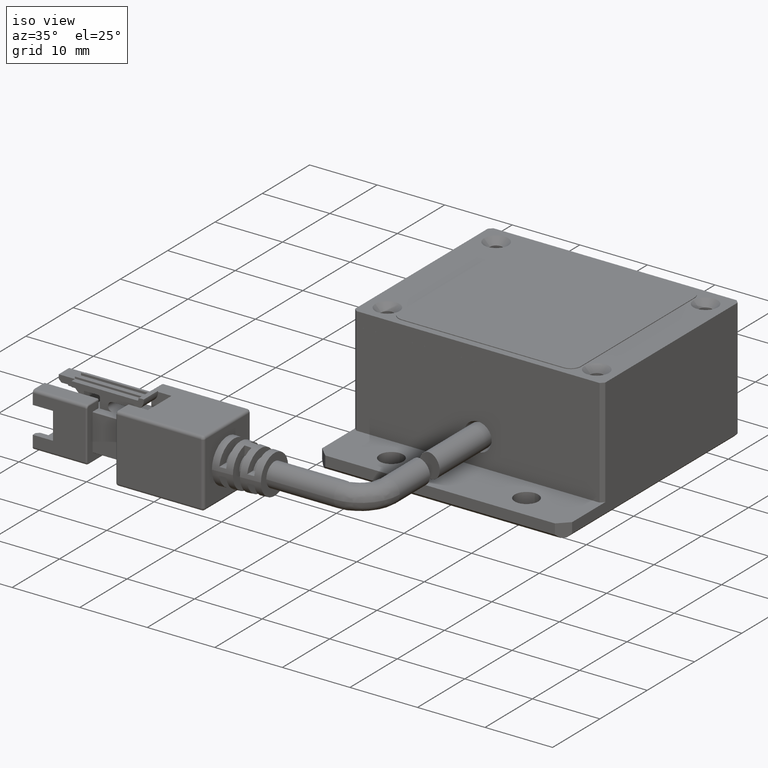
[diagram: clean part render]
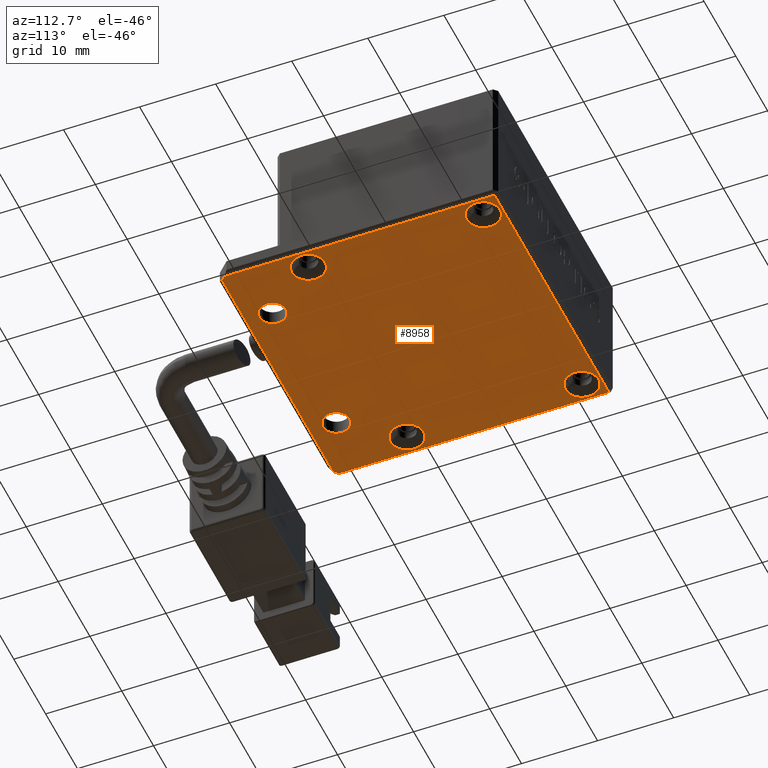
[diagram: tour spotlight — one face highlighted and labeled with its STEP entity id]
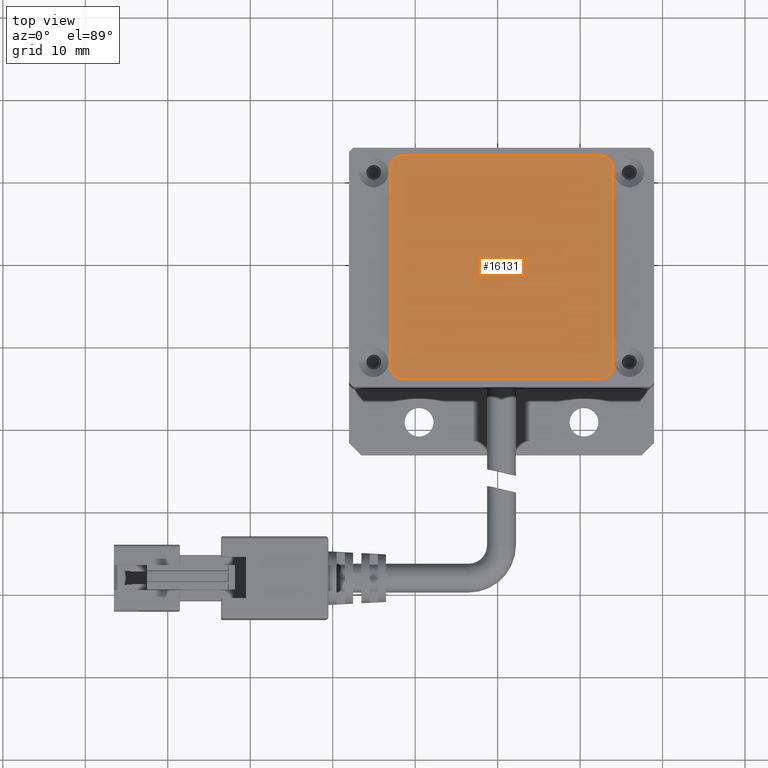
[diagram: tour spotlight — one face highlighted and labeled with its STEP entity id]
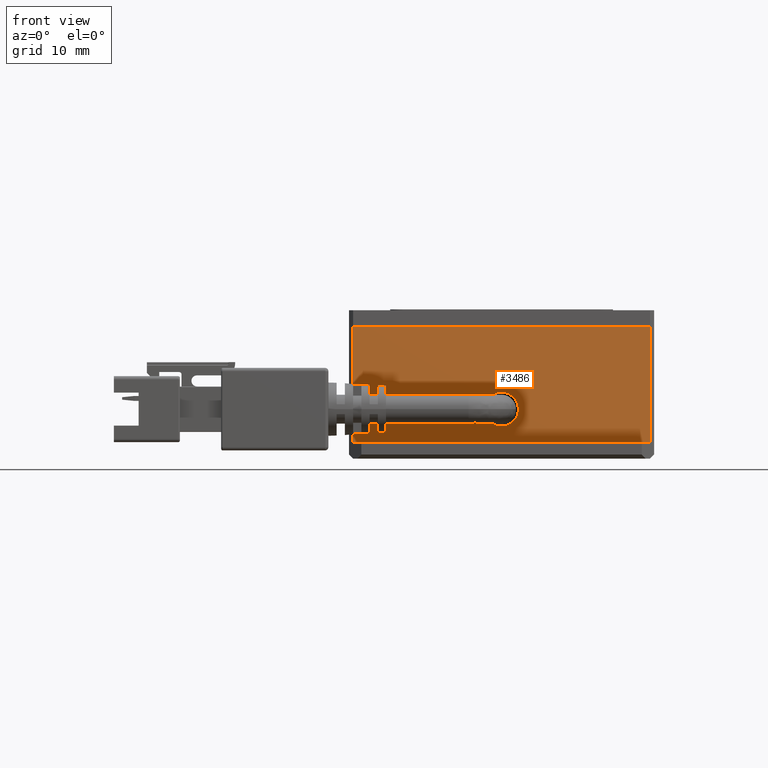
[diagram: tour spotlight — one face highlighted and labeled with its STEP entity id]
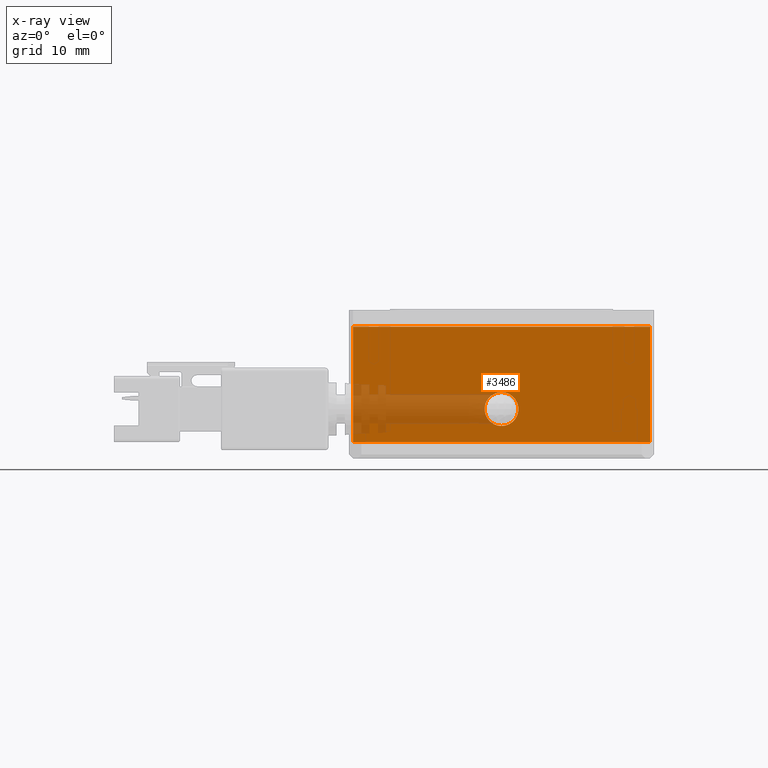
[diagram: x-ray of the same camera — body ghosted, this tour face saturated]
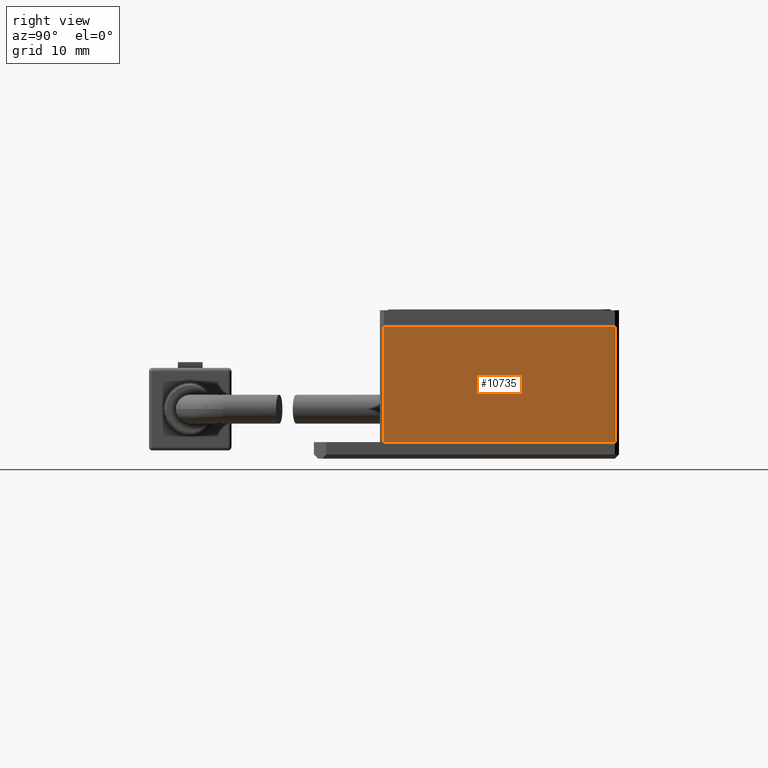
[diagram: tour spotlight — one face highlighted and labeled with its STEP entity id]
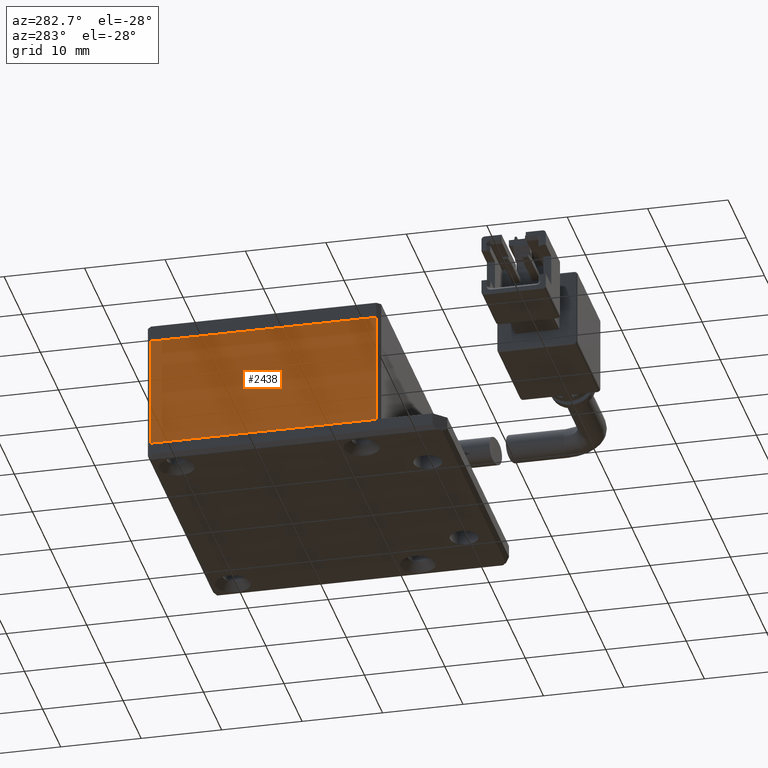
[diagram: tour spotlight — one face highlighted and labeled with its STEP entity id]
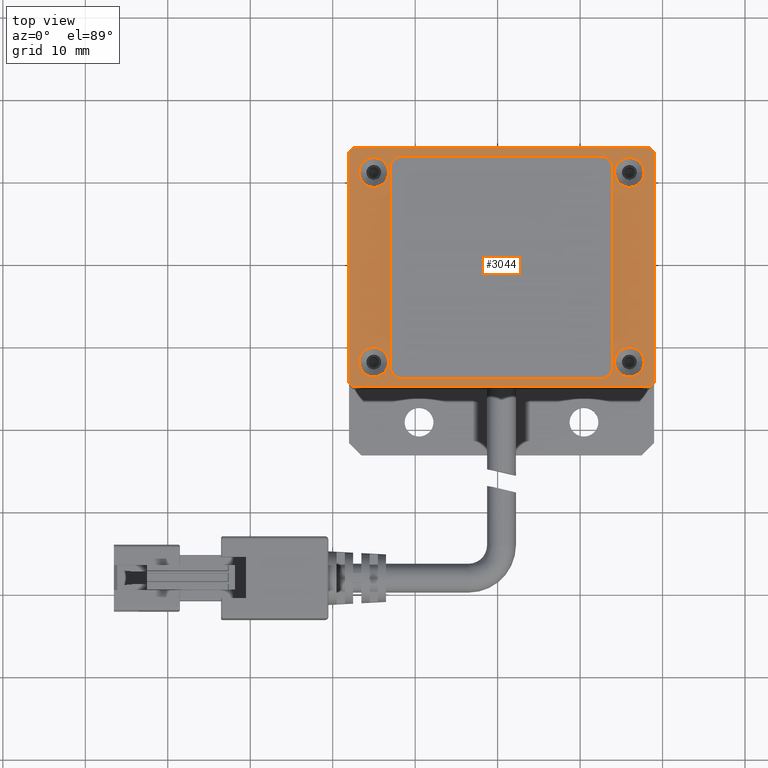
[diagram: tour spotlight — one face highlighted and labeled with its STEP entity id]
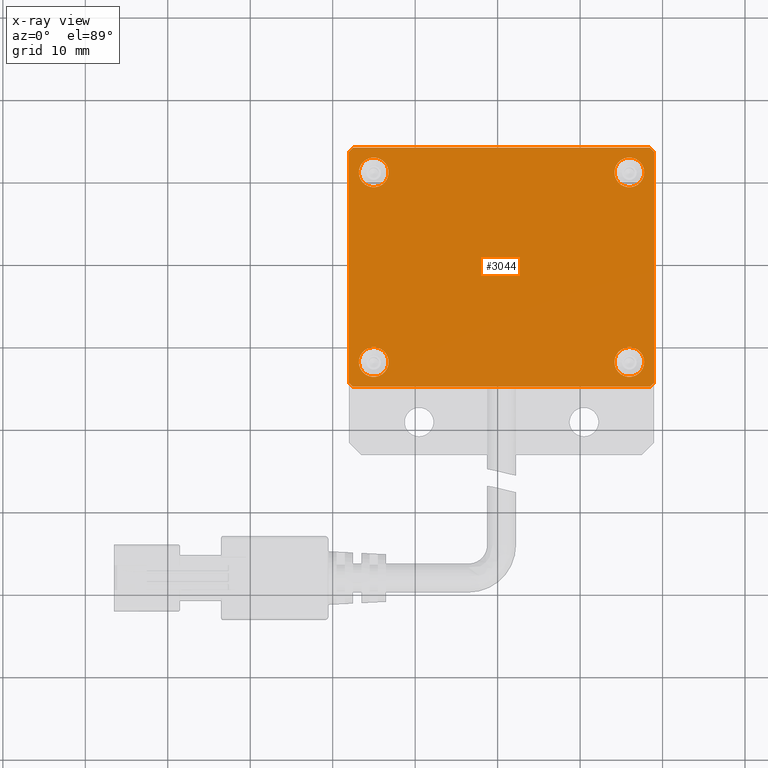
[diagram: x-ray of the same camera — body ghosted, this tour face saturated]
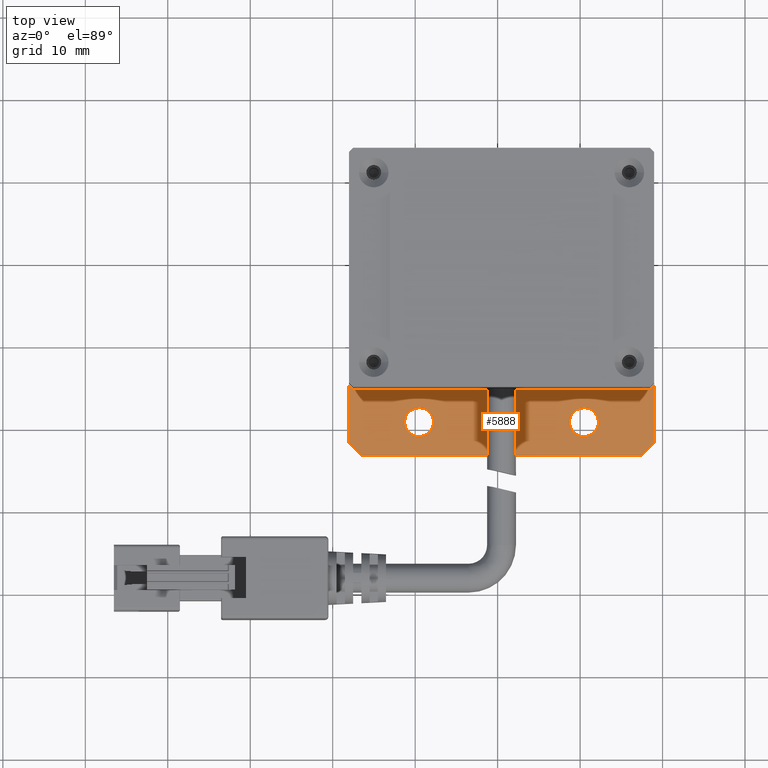
[diagram: tour spotlight — one face highlighted and labeled with its STEP entity id]
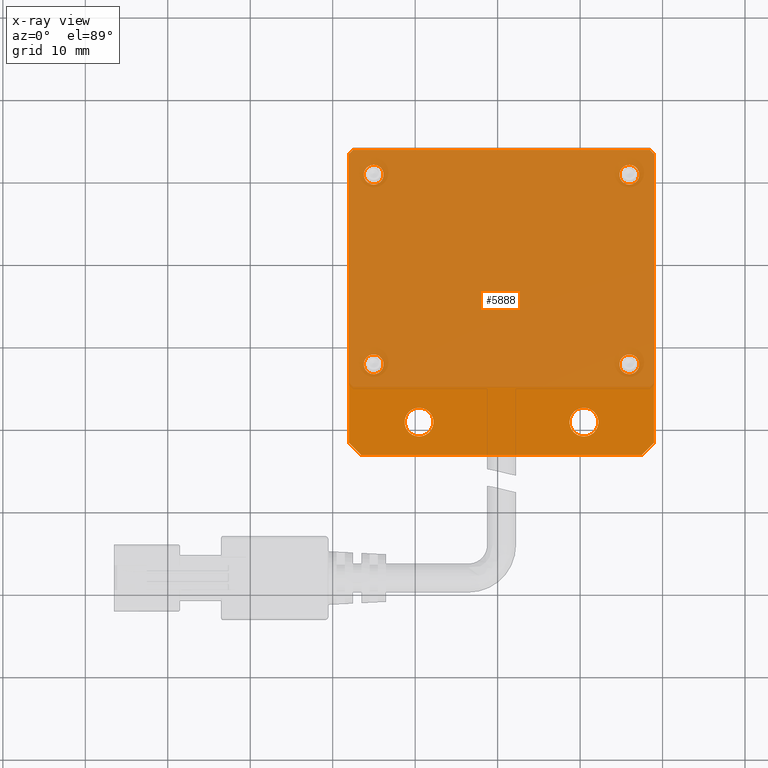
[diagram: x-ray of the same camera — body ghosted, this tour face saturated]
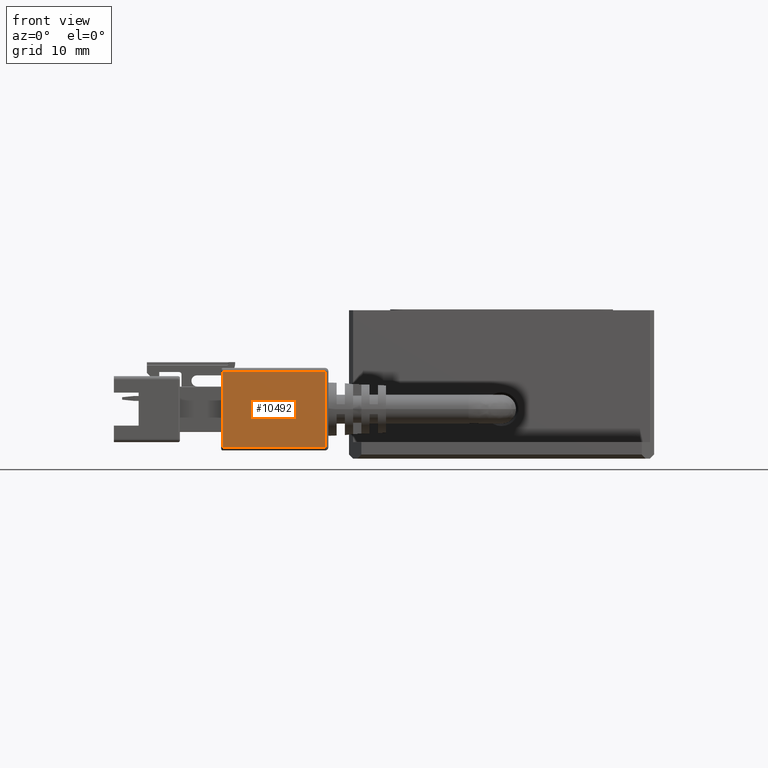
[diagram: tour spotlight — one face highlighted and labeled with its STEP entity id]
A machine part: a face-by-face anatomy tour. The part has 470 B-rep faces; the first image is the clean iso view, then the 8 largest visible faces are spotlighted one at a time (largest first), each with its STEP entity span.

Face 1 — auxiliary view, entity #8958. In plain terms, the highlighted planar face has unit normal (0, -0, 1).
Definition (entity closure, byte-faithful):
#5 = CIRCLE ( 'NONE', #17357, 1.749999999999998000 ) ;
#97 = AXIS2_PLACEMENT_3D ( 'NONE', #17419, #8089, #18953 ) ;
#195 = DIRECTION ( 'NONE',  ( 1.368455531567204200E-047, -2.465190328815661900E-032, 1.000000000000000000 ) ) ;
#221 = VECTOR ( 'NONE', #15588, 1000.000000000000000 ) ;
#290 = DIRECTION ( 'NONE',  ( 0.0000000000000000000, 1.000000000000000000, 0.0000000000000000000 ) ) ;
#328 = AXIS2_PLACEMENT_3D ( 'NONE', #14645, #5311, #16200 ) ;
#351 = EDGE_CURVE ( 'NONE', #19922, #10908, #5270, .T. ) ;
#496 = DIRECTION ( 'NONE',  ( 0.0000000000000000000, 1.000000000000000000, 0.0000000000000000000 ) ) ;
#525 = CARTESIAN_POINT ( 'NONE',  ( -15.02940053455515300, -14.25364642997259400, -2.000000000082761800 ) ) ;
#563 = CIRCLE ( 'NONE', #2814, 1.749999999999998000 ) ;
#594 = CARTESIAN_POINT ( 'NONE',  ( -15.02940053455515300, -9.853646429897528600, -2.000000000082761800 ) ) ;
#658 = CARTESIAN_POINT ( 'NONE',  ( -17.52940053455515800, -22.05364642993504600, -2.000000000016368700 ) ) ;
#701 = VERTEX_POINT ( 'NONE', #18742 ) ;
#739 = CARTESIAN_POINT ( 'NONE',  ( 15.97059946544484400, -14.25364642997259100, -2.000000000082761800 ) ) ;
#1000 = FACE_BOUND ( 'NONE', #18177, .T. ) ;
#1522 = CARTESIAN_POINT ( 'NONE',  ( 15.97059946544482400, 13.14635357001334800, -1.999999999969075200 ) ) ;
#1897 = EDGE_LOOP ( 'NONE', ( #2870, #7550 ) ) ;
#2038 = EDGE_LOOP ( 'NONE', ( #4830, #5045 ) ) ;
#2126 = DIRECTION ( 'NONE',  ( 1.000000000000000000, 1.110223024625158300E-016, -1.094764425253762900E-047 ) ) ;
#2186 = VERTEX_POINT ( 'NONE', #525 ) ;
#2814 = AXIS2_PLACEMENT_3D ( 'NONE', #6580, #17475, #8145 ) ;
#2870 = ORIENTED_EDGE ( 'NONE', *, *, #351, .T. ) ;
#2944 = VERTEX_POINT ( 'NONE', #1522 ) ;
#3015 = CIRCLE ( 'NONE', #9308, 2.200000000037532800 ) ;
#3102 = EDGE_LOOP ( 'NONE', ( #10767, #12091 ) ) ;
#3912 = AXIS2_PLACEMENT_3D ( 'NONE', #16341, #7012, #17900 ) ;
#4182 = FACE_OUTER_BOUND ( 'NONE', #17118, .T. ) ;
#4251 = VERTEX_POINT ( 'NONE', #18976 ) ;
#4347 = CARTESIAN_POINT ( 'NONE',  ( 18.97059946544484200, -23.05364642993505300, -2.000000000016368700 ) ) ;
#4446 = CARTESIAN_POINT ( 'NONE',  ( -9.529400534555158200, -20.80364642993505300, -2.000000000016368700 ) ) ;
#4494 = CARTESIAN_POINT ( 'NONE',  ( 18.97059946544484200, -22.55364642993505300, -2.000000000016368700 ) ) ;
#4650 = FACE_BOUND ( 'NONE', #3102, .T. ) ;
#4706 = ORIENTED_EDGE ( 'NONE', *, *, #7305, .T. ) ;
#4747 = ORIENTED_EDGE ( 'NONE', *, *, #8158, .T. ) ;
#4808 = VERTEX_POINT ( 'NONE', #12668 ) ;
#4830 = ORIENTED_EDGE ( 'NONE', *, *, #7495, .T. ) ;
#4984 = ORIENTED_EDGE ( 'NONE', *, *, #11746, .T. ) ;
#5045 = ORIENTED_EDGE ( 'NONE', *, *, #12372, .T. ) ;
#5068 = VERTEX_POINT ( 'NONE', #7020 ) ;
#5237 = LINE ( 'NONE', #17553, #17668 ) ;
#5270 = CIRCLE ( 'NONE', #328, 2.200000000037532800 ) ;
#5289 = CARTESIAN_POINT ( 'NONE',  ( -15.02940053455515800, 10.94635357006493900, -1.999999999969075200 ) ) ;
#5305 = EDGE_CURVE ( 'NONE', #13043, #8997, #16874, .T. ) ;
#5311 = DIRECTION ( 'NONE',  ( 1.368455531567204200E-047, -2.465190328815661900E-032, 1.000000000000000000 ) ) ;
#5429 = EDGE_CURVE ( 'NONE', #7213, #19078, #563, .T. ) ;
#5505 = AXIS2_PLACEMENT_3D ( 'NONE', #5629, #16520, #7201 ) ;
#5627 = CARTESIAN_POINT ( 'NONE',  ( -15.02940053455515800, 8.746353570116536200, -1.999999999969075200 ) ) ;
#5629 = CARTESIAN_POINT ( 'NONE',  ( 15.97059946544482400, 10.94635357006494500, -1.999999999969075200 ) ) ;
#5664 = CIRCLE ( 'NONE', #16603, 2.200000000037532800 ) ;
#5883 = DIRECTION ( 'NONE',  ( 1.110223024625158300E-016, -1.000000000000000000, -2.465190328815661900E-032 ) ) ;
#5884 = ORIENTED_EDGE ( 'NONE', *, *, #13929, .T. ) ;
#5999 = CARTESIAN_POINT ( 'NONE',  ( 17.97059946544484500, -22.55364642993505300, -2.000000000016368700 ) ) ;
#6362 = LINE ( 'NONE', #14599, #18303 ) ;
#6580 = CARTESIAN_POINT ( 'NONE',  ( -9.529400534555158200, -19.05364642993505700, -2.000000000016368700 ) ) ;
#6665 = DIRECTION ( 'NONE',  ( 1.110223024625158300E-016, -1.000000000000000000, -2.465190328815661900E-032 ) ) ;
#6854 = DIRECTION ( 'NONE',  ( 0.0000000000000000000, 1.000000000000000000, 0.0000000000000000000 ) ) ;
#7012 = DIRECTION ( 'NONE',  ( 1.368455531567204200E-047, -2.465190328815661900E-032, 1.000000000000000000 ) ) ;
#7020 = CARTESIAN_POINT ( 'NONE',  ( 10.47059946544484400, -17.30364642993505700, -2.000000000016368700 ) ) ;
#7066 = VERTEX_POINT ( 'NONE', #7099 ) ;
#7099 = CARTESIAN_POINT ( 'NONE',  ( -17.52940053455516500, 13.44635357006494800, -2.000000000016368700 ) ) ;
#7201 = DIRECTION ( 'NONE',  ( 0.0000000000000000000, 1.000000000000000000, 0.0000000000000000000 ) ) ;
#7213 = VERTEX_POINT ( 'NONE', #4446 ) ;
#7305 = EDGE_CURVE ( 'NONE', #13043, #7066, #16293, .T. ) ;
#7358 = DIRECTION ( 'NONE',  ( 1.368455531567204200E-047, -2.465190328815661900E-032, 1.000000000000000000 ) ) ;
#7495 = EDGE_CURVE ( 'NONE', #701, #5068, #17022, .T. ) ;
#7550 = ORIENTED_EDGE ( 'NONE', *, *, #9675, .T. ) ;
#7661 = CARTESIAN_POINT ( 'NONE',  ( 15.97059946544484400, -9.853646429897525000, -2.000000000082761800 ) ) ;
#7734 = AXIS2_PLACEMENT_3D ( 'NONE', #5289, #16171, #6854 ) ;
#8034 = CARTESIAN_POINT ( 'NONE',  ( -9.529400534555158200, -19.05364642993505700, -2.000000000016368700 ) ) ;
#8040 = LINE ( 'NONE', #5999, #15840 ) ;
#8089 = DIRECTION ( 'NONE',  ( 1.368455531567204200E-047, -2.465190328815661900E-032, 1.000000000000000000 ) ) ;
#8145 = DIRECTION ( 'NONE',  ( 0.0000000000000000000, -1.000000000000000000, 0.0000000000000000000 ) ) ;
#8149 = DIRECTION ( 'NONE',  ( 1.368455531567204200E-047, -2.465190328815661900E-032, 1.000000000000000000 ) ) ;
#8158 = EDGE_CURVE ( 'NONE', #2944, #4808, #11786, .T. ) ;
#8267 = FACE_BOUND ( 'NONE', #9122, .T. ) ;
#8310 = AXIS2_PLACEMENT_3D ( 'NONE', #9522, #195, #11078 ) ;
#8385 = EDGE_CURVE ( 'NONE', #8706, #2186, #5664, .T. ) ;
#8697 = CARTESIAN_POINT ( 'NONE',  ( -15.02940053455515800, 13.14635357001334100, -1.999999999969075200 ) ) ;
#8706 = VERTEX_POINT ( 'NONE', #594 ) ;
#8850 = VERTEX_POINT ( 'NONE', #5627 ) ;
#8875 = CIRCLE ( 'NONE', #8310, 1.749999999999998000 ) ;
#8958 = ADVANCED_FACE ( 'NONE', ( #4650, #1000, #12899, #16578, #12431, #8267, #4182 ), #18276, .F. ) ;
#8997 = VERTEX_POINT ( 'NONE', #15293 ) ;
#9122 = EDGE_LOOP ( 'NONE', ( #13117, #5884 ) ) ;
#9247 = AXIS2_PLACEMENT_3D ( 'NONE', #17477, #8149, #19004 ) ;
#9308 = AXIS2_PLACEMENT_3D ( 'NONE', #18889, #9601, #290 ) ;
#9522 = CARTESIAN_POINT ( 'NONE',  ( 10.47059946544484400, -19.05364642993505300, -2.000000000016368700 ) ) ;
#9595 = DIRECTION ( 'NONE',  ( 0.0000000000000000000, -1.000000000000000000, 0.0000000000000000000 ) ) ;
#9601 = DIRECTION ( 'NONE',  ( 1.368455531567204200E-047, -2.465190328815661900E-032, 1.000000000000000000 ) ) ;
#9675 = EDGE_CURVE ( 'NONE', #10908, #19922, #3015, .T. ) ;
#9760 = EDGE_CURVE ( 'NONE', #8850, #14777, #12976, .T. ) ;
#9799 = DIRECTION ( 'NONE',  ( 1.368455531567204200E-047, -2.465190328815661900E-032, 1.000000000000000000 ) ) ;
#10422 = EDGE_LOOP ( 'NONE', ( #17483, #10626 ) ) ;
#10626 = ORIENTED_EDGE ( 'NONE', *, *, #11918, .T. ) ;
#10767 = ORIENTED_EDGE ( 'NONE', *, *, #14636, .T. ) ;
#10835 = ORIENTED_EDGE ( 'NONE', *, *, #11808, .T. ) ;
#10850 = CIRCLE ( 'NONE', #97, 2.199999999948402800 ) ;
#10861 = AXIS2_PLACEMENT_3D ( 'NONE', #4347, #15221, #5883 ) ;
#10908 = VERTEX_POINT ( 'NONE', #739 ) ;
#10992 = LINE ( 'NONE', #4494, #15161 ) ;
#11078 = DIRECTION ( 'NONE',  ( 0.0000000000000000000, -1.000000000000000000, 0.0000000000000000000 ) ) ;
#11282 = CIRCLE ( 'NONE', #7734, 2.199999999948402800 ) ;
#11746 = EDGE_CURVE ( 'NONE', #4808, #2944, #10850, .T. ) ;
#11786 = CIRCLE ( 'NONE', #5505, 2.199999999948402800 ) ;
#11808 = EDGE_CURVE ( 'NONE', #14104, #19463, #5237, .T. ) ;
#11918 = EDGE_CURVE ( 'NONE', #2186, #8706, #13768, .T. ) ;
#12091 = ORIENTED_EDGE ( 'NONE', *, *, #9760, .T. ) ;
#12281 = DIRECTION ( 'NONE',  ( 0.7071067811865392500, 0.7071067811865557900, 1.743152798421068700E-032 ) ) ;
#12372 = EDGE_CURVE ( 'NONE', #5068, #701, #8875, .T. ) ;
#12431 = FACE_BOUND ( 'NONE', #2038, .T. ) ;
#12459 = DIRECTION ( 'NONE',  ( 0.7071067811865541200, -0.7071067811865408000, -1.743152798421033900E-032 ) ) ;
#12668 = CARTESIAN_POINT ( 'NONE',  ( 15.97059946544482400, 8.746353570116543400, -1.999999999969075200 ) ) ;
#12899 = FACE_BOUND ( 'NONE', #10422, .T. ) ;
#12976 = CIRCLE ( 'NONE', #18687, 2.199999999948402800 ) ;
#13043 = VERTEX_POINT ( 'NONE', #658 ) ;
#13117 = ORIENTED_EDGE ( 'NONE', *, *, #5429, .T. ) ;
#13458 = EDGE_CURVE ( 'NONE', #7066, #14104, #6362, .T. ) ;
#13764 = EDGE_CURVE ( 'NONE', #4251, #19463, #8040, .T. ) ;
#13768 = CIRCLE ( 'NONE', #3912, 2.200000000037532800 ) ;
#13809 = DIRECTION ( 'NONE',  ( -1.000000000000000000, -1.110223024625158300E-016, 1.094764425253762900E-047 ) ) ;
#13929 = EDGE_CURVE ( 'NONE', #19078, #7213, #5, .T. ) ;
#14029 = CARTESIAN_POINT ( 'NONE',  ( -17.52940053455515800, -23.05364642993505700, -2.000000000016368700 ) ) ;
#14104 = VERTEX_POINT ( 'NONE', #16193 ) ;
#14599 = CARTESIAN_POINT ( 'NONE',  ( 18.97059946544483500, 13.44635357006494800, -2.000000000016368700 ) ) ;
#14636 = EDGE_CURVE ( 'NONE', #14777, #8850, #11282, .T. ) ;
#14645 = CARTESIAN_POINT ( 'NONE',  ( 15.97059946544484400, -12.05364642993505700, -2.000000000082761800 ) ) ;
#14671 = CARTESIAN_POINT ( 'NONE',  ( -9.529400534555158200, -17.30364642993505700, -2.000000000016368700 ) ) ;
#14777 = VERTEX_POINT ( 'NONE', #8697 ) ;
#14999 = ORIENTED_EDGE ( 'NONE', *, *, #13764, .F. ) ;
#15161 = VECTOR ( 'NONE', #13809, 1000.000000000000000 ) ;
#15221 = DIRECTION ( 'NONE',  ( 1.368455531567204200E-047, -2.465190328815661900E-032, 1.000000000000000000 ) ) ;
#15293 = CARTESIAN_POINT ( 'NONE',  ( -17.02940053455514400, -22.55364642993505700, -2.000000000016369100 ) ) ;
#15588 = DIRECTION ( 'NONE',  ( -1.110223024625158300E-016, 1.000000000000000000, 2.465190328815661900E-032 ) ) ;
#15840 = VECTOR ( 'NONE', #12281, 1000.000000000000000 ) ;
#15903 = CARTESIAN_POINT ( 'NONE',  ( 18.47059946544484500, -22.05364642993505000, -2.000000000016368700 ) ) ;
#16171 = DIRECTION ( 'NONE',  ( 1.368455531567204200E-047, -2.465190328815661900E-032, 1.000000000000000000 ) ) ;
#16193 = CARTESIAN_POINT ( 'NONE',  ( 18.47059946544483100, 13.44635357006495500, -2.000000000016368700 ) ) ;
#16200 = DIRECTION ( 'NONE',  ( 0.0000000000000000000, 1.000000000000000000, 0.0000000000000000000 ) ) ;
#16293 = LINE ( 'NONE', #14029, #221 ) ;
#16341 = CARTESIAN_POINT ( 'NONE',  ( -15.02940053455515300, -12.05364642993506100, -2.000000000082761800 ) ) ;
#16402 = VECTOR ( 'NONE', #12459, 1000.000000000000100 ) ;
#16520 = DIRECTION ( 'NONE',  ( 1.368455531567204200E-047, -2.465190328815661900E-032, 1.000000000000000000 ) ) ;
#16578 = FACE_BOUND ( 'NONE', #1897, .T. ) ;
#16603 = AXIS2_PLACEMENT_3D ( 'NONE', #16673, #7358, #18232 ) ;
#16673 = CARTESIAN_POINT ( 'NONE',  ( -15.02940053455515300, -12.05364642993506100, -2.000000000082761800 ) ) ;
#16874 = LINE ( 'NONE', #18634, #16402 ) ;
#17022 = CIRCLE ( 'NONE', #9247, 1.749999999999998000 ) ;
#17118 = EDGE_LOOP ( 'NONE', ( #18265, #4706, #18397, #10835, #14999, #19158 ) ) ;
#17357 = AXIS2_PLACEMENT_3D ( 'NONE', #8034, #18886, #9595 ) ;
#17419 = CARTESIAN_POINT ( 'NONE',  ( 15.97059946544482400, 10.94635357006494500, -1.999999999969075200 ) ) ;
#17475 = DIRECTION ( 'NONE',  ( 1.368455531567204200E-047, -2.465190328815661900E-032, 1.000000000000000000 ) ) ;
#17477 = CARTESIAN_POINT ( 'NONE',  ( 10.47059946544484400, -19.05364642993505300, -2.000000000016368700 ) ) ;
#17483 = ORIENTED_EDGE ( 'NONE', *, *, #8385, .T. ) ;
#17553 = CARTESIAN_POINT ( 'NONE',  ( 18.47059946544483800, -23.05364642993505300, -2.000000000016368700 ) ) ;
#17668 = VECTOR ( 'NONE', #6665, 1000.000000000000000 ) ;
#17900 = DIRECTION ( 'NONE',  ( 0.0000000000000000000, 1.000000000000000000, 0.0000000000000000000 ) ) ;
#18177 = EDGE_LOOP ( 'NONE', ( #4747, #4984 ) ) ;
#18232 = DIRECTION ( 'NONE',  ( 0.0000000000000000000, 1.000000000000000000, 0.0000000000000000000 ) ) ;
#18265 = ORIENTED_EDGE ( 'NONE', *, *, #5305, .F. ) ;
#18276 = PLANE ( 'NONE',  #10861 ) ;
#18303 = VECTOR ( 'NONE', #2126, 1000.000000000000000 ) ;
#18397 = ORIENTED_EDGE ( 'NONE', *, *, #13458, .T. ) ;
#18634 = CARTESIAN_POINT ( 'NONE',  ( -17.52940053455515800, -22.05364642993504600, -2.000000000016368700 ) ) ;
#18687 = AXIS2_PLACEMENT_3D ( 'NONE', #19096, #9799, #496 ) ;
#18742 = CARTESIAN_POINT ( 'NONE',  ( 10.47059946544484400, -20.80364642993505000, -2.000000000016368700 ) ) ;
#18822 = EDGE_CURVE ( 'NONE', #4251, #8997, #10992, .T. ) ;
#18886 = DIRECTION ( 'NONE',  ( 1.368455531567204200E-047, -2.465190328815661900E-032, 1.000000000000000000 ) ) ;
#18889 = CARTESIAN_POINT ( 'NONE',  ( 15.97059946544484400, -12.05364642993505700, -2.000000000082761800 ) ) ;
#18953 = DIRECTION ( 'NONE',  ( 0.0000000000000000000, 1.000000000000000000, 0.0000000000000000000 ) ) ;
#18976 = CARTESIAN_POINT ( 'NONE',  ( 17.97059946544484500, -22.55364642993505300, -2.000000000016368700 ) ) ;
#19004 = DIRECTION ( 'NONE',  ( 0.0000000000000000000, -1.000000000000000000, 0.0000000000000000000 ) ) ;
#19078 = VERTEX_POINT ( 'NONE', #14671 ) ;
#19096 = CARTESIAN_POINT ( 'NONE',  ( -15.02940053455515800, 10.94635357006493900, -1.999999999969075200 ) ) ;
#19158 = ORIENTED_EDGE ( 'NONE', *, *, #18822, .T. ) ;
#19463 = VERTEX_POINT ( 'NONE', #15903 ) ;
#19922 = VERTEX_POINT ( 'NONE', #7661 ) ;

Face 2 — top view, entity #16131. In plain terms, the highlighted planar face has unit normal (0, 0, 1).
Definition (entity closure, byte-faithful):
#154 = DIRECTION ( 'NONE',  ( 0.0000000000000000000, 0.0000000000000000000, 1.000000000000000000 ) ) ;
#171 = CARTESIAN_POINT ( 'NONE',  ( 12.47059946544482800, 11.44635357006494500, 16.09999999998363100 ) ) ;
#197 = EDGE_CURVE ( 'NONE', #14022, #16503, #16750, .T. ) ;
#741 = ORIENTED_EDGE ( 'NONE', *, *, #14996, .T. ) ;
#1135 = CARTESIAN_POINT ( 'NONE',  ( -11.52940053455516900, -12.55364642993505300, 16.09999999998363100 ) ) ;
#1222 = DIRECTION ( 'NONE',  ( 0.0000000000000000000, 0.0000000000000000000, 1.000000000000000000 ) ) ;
#1295 = VECTOR ( 'NONE', #3898, 1000.000000000000000 ) ;
#1733 = DIRECTION ( 'NONE',  ( 1.000000000000000000, 0.0000000000000000000, 0.0000000000000000000 ) ) ;
#1981 = CARTESIAN_POINT ( 'NONE',  ( 12.47059946544482800, -12.55364642993505300, 16.09999999998363100 ) ) ;
#2693 = DIRECTION ( 'NONE',  ( 1.000000000000000000, 0.0000000000000000000, 0.0000000000000000000 ) ) ;
#2699 = CARTESIAN_POINT ( 'NONE',  ( 12.47059946544482800, -14.05364642993505300, 16.09999999998363100 ) ) ;
#3158 = VERTEX_POINT ( 'NONE', #9872 ) ;
#3184 = CARTESIAN_POINT ( 'NONE',  ( 13.97059946544482900, -12.55364642993505300, 16.09999999998363100 ) ) ;
#3227 = PLANE ( 'NONE',  #6215 ) ;
#3553 = DIRECTION ( 'NONE',  ( 1.000000000000000000, 0.0000000000000000000, 0.0000000000000000000 ) ) ;
#3898 = DIRECTION ( 'NONE',  ( -1.000000000000000000, 0.0000000000000000000, 0.0000000000000000000 ) ) ;
#4015 = EDGE_CURVE ( 'NONE', #5252, #12332, #10585, .T. ) ;
#4155 = FACE_OUTER_BOUND ( 'NONE', #11741, .T. ) ;
#4452 = EDGE_CURVE ( 'NONE', #12332, #6863, #9323, .T. ) ;
#4532 = ORIENTED_EDGE ( 'NONE', *, *, #8290, .T. ) ;
#4717 = CARTESIAN_POINT ( 'NONE',  ( -13.02940053455517100, 11.44635357006494500, 16.09999999998363100 ) ) ;
#5252 = VERTEX_POINT ( 'NONE', #7569 ) ;
#5917 = LINE ( 'NONE', #18882, #7154 ) ;
#6066 = ORIENTED_EDGE ( 'NONE', *, *, #4015, .T. ) ;
#6215 = AXIS2_PLACEMENT_3D ( 'NONE', #9471, #154, #11030 ) ;
#6863 = VERTEX_POINT ( 'NONE', #10094 ) ;
#7154 = VECTOR ( 'NONE', #15858, 1000.000000000000000 ) ;
#7262 = ORIENTED_EDGE ( 'NONE', *, *, #17693, .T. ) ;
#7569 = CARTESIAN_POINT ( 'NONE',  ( -11.52940053455516900, 12.94635357006494500, 16.09999999998363100 ) ) ;
#8290 = EDGE_CURVE ( 'NONE', #16503, #5252, #13716, .T. ) ;
#8944 = VERTEX_POINT ( 'NONE', #2699 ) ;
#9323 = LINE ( 'NONE', #11752, #12977 ) ;
#9354 = DIRECTION ( 'NONE',  ( 0.0000000000000000000, 1.000000000000000000, 0.0000000000000000000 ) ) ;
#9471 = CARTESIAN_POINT ( 'NONE',  ( -11.52940053455516900, 11.44635357006494500, 16.09999999998363100 ) ) ;
#9872 = CARTESIAN_POINT ( 'NONE',  ( -11.52940053455516900, -14.05364642993505200, 16.09999999998363100 ) ) ;
#10094 = CARTESIAN_POINT ( 'NONE',  ( -13.02940053455517100, -12.55364642993505300, 16.09999999998363100 ) ) ;
#10534 = CARTESIAN_POINT ( 'NONE',  ( -11.52940053455516900, 11.44635357006494500, 16.09999999998363100 ) ) ;
#10585 = CIRCLE ( 'NONE', #14930, 1.500000000000001300 ) ;
#10823 = VERTEX_POINT ( 'NONE', #12967 ) ;
#11019 = VECTOR ( 'NONE', #9354, 1000.000000000000000 ) ;
#11030 = DIRECTION ( 'NONE',  ( 1.000000000000000000, 0.0000000000000000000, -0.0000000000000000000 ) ) ;
#11049 = DIRECTION ( 'NONE',  ( 0.0000000000000000000, 0.0000000000000000000, 1.000000000000000000 ) ) ;
#11156 = CIRCLE ( 'NONE', #19761, 1.500000000000001300 ) ;
#11360 = CARTESIAN_POINT ( 'NONE',  ( 13.97059946544482900, 11.44635357006494500, 16.09999999998363100 ) ) ;
#11509 = LINE ( 'NONE', #3184, #11019 ) ;
#11741 = EDGE_LOOP ( 'NONE', ( #6066, #19403, #7262, #15786, #12687, #741, #19253, #4532 ) ) ;
#11752 = CARTESIAN_POINT ( 'NONE',  ( -13.02940053455517100, 11.44635357006494500, 16.09999999998363100 ) ) ;
#12026 = DIRECTION ( 'NONE',  ( 0.0000000000000000000, 0.0000000000000000000, 1.000000000000000000 ) ) ;
#12071 = CARTESIAN_POINT ( 'NONE',  ( 12.47059946544482800, 12.94635357006494500, 16.09999999998363100 ) ) ;
#12118 = DIRECTION ( 'NONE',  ( 1.000000000000000000, 0.0000000000000000000, 0.0000000000000000000 ) ) ;
#12332 = VERTEX_POINT ( 'NONE', #4717 ) ;
#12687 = ORIENTED_EDGE ( 'NONE', *, *, #16208, .T. ) ;
#12867 = DIRECTION ( 'NONE',  ( 0.0000000000000000000, 0.0000000000000000000, 1.000000000000000000 ) ) ;
#12967 = CARTESIAN_POINT ( 'NONE',  ( 13.97059946544482900, -12.55364642993505300, 16.09999999998363100 ) ) ;
#12977 = VECTOR ( 'NONE', #13326, 1000.000000000000000 ) ;
#13326 = DIRECTION ( 'NONE',  ( 0.0000000000000000000, -1.000000000000000000, 0.0000000000000000000 ) ) ;
#13644 = AXIS2_PLACEMENT_3D ( 'NONE', #171, #11049, #1733 ) ;
#13716 = LINE ( 'NONE', #14852, #1295 ) ;
#14022 = VERTEX_POINT ( 'NONE', #11360 ) ;
#14852 = CARTESIAN_POINT ( 'NONE',  ( 12.47059946544482800, 12.94635357006494500, 16.09999999998363100 ) ) ;
#14930 = AXIS2_PLACEMENT_3D ( 'NONE', #10534, #1222, #12118 ) ;
#14996 = EDGE_CURVE ( 'NONE', #10823, #14022, #11509, .T. ) ;
#15786 = ORIENTED_EDGE ( 'NONE', *, *, #18384, .T. ) ;
#15858 = DIRECTION ( 'NONE',  ( 1.000000000000000000, -7.228014483236697000E-017, 0.0000000000000000000 ) ) ;
#16131 = ADVANCED_FACE ( 'NONE', ( #4155 ), #3227, .T. ) ;
#16185 = AXIS2_PLACEMENT_3D ( 'NONE', #1135, #12026, #2693 ) ;
#16208 = EDGE_CURVE ( 'NONE', #8944, #10823, #11156, .T. ) ;
#16503 = VERTEX_POINT ( 'NONE', #12071 ) ;
#16750 = CIRCLE ( 'NONE', #13644, 1.500000000000001300 ) ;
#17693 = EDGE_CURVE ( 'NONE', #6863, #3158, #18600, .T. ) ;
#18384 = EDGE_CURVE ( 'NONE', #3158, #8944, #5917, .T. ) ;
#18600 = CIRCLE ( 'NONE', #16185, 1.500000000000001300 ) ;
#18882 = CARTESIAN_POINT ( 'NONE',  ( -11.52940053455516900, -14.05364642993505200, 16.09999999998363100 ) ) ;
#19253 = ORIENTED_EDGE ( 'NONE', *, *, #197, .T. ) ;
#19403 = ORIENTED_EDGE ( 'NONE', *, *, #4452, .T. ) ;
#19761 = AXIS2_PLACEMENT_3D ( 'NONE', #1981, #12867, #3553 ) ;

Face 3 — front view, entity #3486. An x-ray twin of the same camera follows (body ghosted, this face saturated) — the face is partly hidden behind the body. In plain terms, the highlighted planar face has unit normal (0, 1, 0).
Definition (entity closure, byte-faithful):
#354 = EDGE_CURVE ( 'NONE', #1354, #15794, #17223, .T. ) ;
#531 = CARTESIAN_POINT ( 'NONE',  ( 18.47059946544482000, -15.05364642993505300, 13.99999999998362900 ) ) ;
#702 = DIRECTION ( 'NONE',  ( -0.0000000000000000000, 0.0000000000000000000, -1.000000000000000000 ) ) ;
#759 = LINE ( 'NONE', #6676, #16815 ) ;
#1354 = VERTEX_POINT ( 'NONE', #3252 ) ;
#1519 = CARTESIAN_POINT ( 'NONE',  ( 18.47059946544482000, -15.05364642993505200, -1.637492225148307100E-011 ) ) ;
#1718 = DIRECTION ( 'NONE',  ( 0.0000000000000000000, -1.000000000000000000, 0.0000000000000000000 ) ) ;
#2330 = CARTESIAN_POINT ( 'NONE',  ( 0.4705994654448236700, -15.05364642993505200, 3.999999999983630400 ) ) ;
#3228 = LINE ( 'NONE', #12480, #6868 ) ;
#3252 = CARTESIAN_POINT ( 'NONE',  ( -17.52940053455517600, -15.05364642993505200, -1.637318752800709400E-011 ) ) ;
#3284 = CIRCLE ( 'NONE', #9040, 2.050000000052330400 ) ;
#3486 = ADVANCED_FACE ( 'NONE', ( #12349, #15986 ), #8981, .F. ) ;
#3754 = CARTESIAN_POINT ( 'NONE',  ( -17.52940053455517200, -15.05364642993505200, 13.99999999998362900 ) ) ;
#3887 = VERTEX_POINT ( 'NONE', #16328 ) ;
#3921 = DIRECTION ( 'NONE',  ( 0.0000000000000000000, 0.0000000000000000000, -1.000000000000000000 ) ) ;
#4303 = ORIENTED_EDGE ( 'NONE', *, *, #354, .F. ) ;
#4759 = EDGE_CURVE ( 'NONE', #8662, #15794, #3228, .T. ) ;
#4771 = AXIS2_PLACEMENT_3D ( 'NONE', #11033, #1718, #12607 ) ;
#4781 = EDGE_CURVE ( 'NONE', #3887, #15723, #19256, .T. ) ;
#5133 = CARTESIAN_POINT ( 'NONE',  ( 0.4705994654448239500, -15.05364642993505200, 6.050000000035960400 ) ) ;
#5907 = CARTESIAN_POINT ( 'NONE',  ( -18.02940053455517200, -15.05364642993505200, 13.99999999998362900 ) ) ;
#6347 = DIRECTION ( 'NONE',  ( -1.000000000000000000, 0.0000000000000000000, -0.0000000000000000000 ) ) ;
#6676 = CARTESIAN_POINT ( 'NONE',  ( -18.02940053455517200, -15.05364642993505200, -1.636971808105514000E-011 ) ) ;
#6868 = VECTOR ( 'NONE', #6347, 1000.000000000000000 ) ;
#6932 = EDGE_CURVE ( 'NONE', #11632, #1354, #759, .T. ) ;
#7496 = DIRECTION ( 'NONE',  ( 0.0000000000000000000, -0.0000000000000000000, 1.000000000000000000 ) ) ;
#8169 = DIRECTION ( 'NONE',  ( -1.000000000000000000, 0.0000000000000000000, -0.0000000000000000000 ) ) ;
#8662 = VERTEX_POINT ( 'NONE', #531 ) ;
#8981 = PLANE ( 'NONE',  #12928 ) ;
#9040 = AXIS2_PLACEMENT_3D ( 'NONE', #2330, #13226, #3921 ) ;
#9407 = EDGE_CURVE ( 'NONE', #15723, #3887, #3284, .T. ) ;
#9722 = ORIENTED_EDGE ( 'NONE', *, *, #9853, .F. ) ;
#9853 = EDGE_CURVE ( 'NONE', #8662, #11632, #12498, .T. ) ;
#9940 = DIRECTION ( 'NONE',  ( 0.0000000000000000000, -0.0000000000000000000, 1.000000000000000000 ) ) ;
#10668 = ORIENTED_EDGE ( 'NONE', *, *, #4759, .T. ) ;
#11033 = CARTESIAN_POINT ( 'NONE',  ( 0.4705994654448236700, -15.05364642993505200, 3.999999999983630400 ) ) ;
#11632 = VERTEX_POINT ( 'NONE', #1519 ) ;
#12247 = ORIENTED_EDGE ( 'NONE', *, *, #9407, .F. ) ;
#12349 = FACE_OUTER_BOUND ( 'NONE', #17697, .T. ) ;
#12480 = CARTESIAN_POINT ( 'NONE',  ( -18.02940053455517200, -15.05364642993505500, 13.99999999998362900 ) ) ;
#12498 = LINE ( 'NONE', #16198, #16134 ) ;
#12607 = DIRECTION ( 'NONE',  ( 0.0000000000000000000, 0.0000000000000000000, -1.000000000000000000 ) ) ;
#12928 = AXIS2_PLACEMENT_3D ( 'NONE', #5907, #16803, #7496 ) ;
#13075 = VECTOR ( 'NONE', #9940, 1000.000000000000000 ) ;
#13226 = DIRECTION ( 'NONE',  ( 0.0000000000000000000, -1.000000000000000000, 0.0000000000000000000 ) ) ;
#13896 = ORIENTED_EDGE ( 'NONE', *, *, #6932, .F. ) ;
#14742 = CARTESIAN_POINT ( 'NONE',  ( -17.52940053455517600, -15.05364642993505300, 13.99999999998362900 ) ) ;
#15723 = VERTEX_POINT ( 'NONE', #5133 ) ;
#15794 = VERTEX_POINT ( 'NONE', #14742 ) ;
#15801 = ORIENTED_EDGE ( 'NONE', *, *, #4781, .F. ) ;
#15986 = FACE_BOUND ( 'NONE', #18462, .T. ) ;
#16134 = VECTOR ( 'NONE', #702, 1000.000000000000000 ) ;
#16198 = CARTESIAN_POINT ( 'NONE',  ( 18.47059946544482000, -15.05364642993505200, 13.99999999998362900 ) ) ;
#16328 = CARTESIAN_POINT ( 'NONE',  ( 0.4705994654448236700, -15.05364642993505200, 1.949999999931300000 ) ) ;
#16803 = DIRECTION ( 'NONE',  ( 0.0000000000000000000, 1.000000000000000000, 0.0000000000000000000 ) ) ;
#16815 = VECTOR ( 'NONE', #8169, 1000.000000000000000 ) ;
#17223 = LINE ( 'NONE', #3754, #13075 ) ;
#17697 = EDGE_LOOP ( 'NONE', ( #4303, #13896, #9722, #10668 ) ) ;
#18462 = EDGE_LOOP ( 'NONE', ( #15801, #12247 ) ) ;
#19256 = CIRCLE ( 'NONE', #4771, 2.050000000052330400 ) ;

Face 4 — right view, entity #10735. In plain terms, the highlighted planar face has unit normal (-1, 0, 0).
Definition (entity closure, byte-faithful):
#397 = CARTESIAN_POINT ( 'NONE',  ( 18.97059946544482800, -15.05364642993505200, 13.99999999998362900 ) ) ;
#817 = CARTESIAN_POINT ( 'NONE',  ( 18.97059946544483500, 13.44635357006494700, 13.99999999998362900 ) ) ;
#1390 = CARTESIAN_POINT ( 'NONE',  ( 18.97059946544482000, -14.55364642993506400, -1.637318752800709400E-011 ) ) ;
#1950 = DIRECTION ( 'NONE',  ( 0.0000000000000000000, 0.0000000000000000000, 1.000000000000000000 ) ) ;
#2046 = ORIENTED_EDGE ( 'NONE', *, *, #7034, .T. ) ;
#2328 = DIRECTION ( 'NONE',  ( 0.0000000000000000000, 0.0000000000000000000, 1.000000000000000000 ) ) ;
#2532 = VERTEX_POINT ( 'NONE', #1390 ) ;
#3424 = FACE_OUTER_BOUND ( 'NONE', #7617, .T. ) ;
#3916 = VERTEX_POINT ( 'NONE', #817 ) ;
#5002 = DIRECTION ( 'NONE',  ( 0.0000000000000000000, 0.0000000000000000000, 1.000000000000000000 ) ) ;
#5086 = CARTESIAN_POINT ( 'NONE',  ( 18.97059946544482800, 13.94635357006495000, 13.99999999998362900 ) ) ;
#5148 = DIRECTION ( 'NONE',  ( -0.0000000000000000000, -1.000000000000000000, -0.0000000000000000000 ) ) ;
#5866 = EDGE_CURVE ( 'NONE', #3916, #7187, #15146, .T. ) ;
#7034 = EDGE_CURVE ( 'NONE', #15964, #3916, #15592, .T. ) ;
#7187 = VERTEX_POINT ( 'NONE', #18382 ) ;
#7218 = ORIENTED_EDGE ( 'NONE', *, *, #5866, .T. ) ;
#7617 = EDGE_LOOP ( 'NONE', ( #2046, #7218, #7764, #16467 ) ) ;
#7764 = ORIENTED_EDGE ( 'NONE', *, *, #18964, .F. ) ;
#7821 = VECTOR ( 'NONE', #5002, 1000.000000000000000 ) ;
#8086 = EDGE_CURVE ( 'NONE', #15964, #2532, #9576, .T. ) ;
#9576 = LINE ( 'NONE', #10116, #13736 ) ;
#10116 = CARTESIAN_POINT ( 'NONE',  ( 18.97059946544482800, 13.94635357006495000, -1.636971808105514000E-011 ) ) ;
#10735 = ADVANCED_FACE ( 'NONE', ( #3424 ), #14330, .F. ) ;
#10977 = VECTOR ( 'NONE', #5148, 1000.000000000000000 ) ;
#11265 = DIRECTION ( 'NONE',  ( -1.000000000000000000, 0.0000000000000000000, 0.0000000000000000000 ) ) ;
#13223 = CARTESIAN_POINT ( 'NONE',  ( 18.97059946544483500, 13.44635357006494300, 13.99999999998362900 ) ) ;
#13251 = DIRECTION ( 'NONE',  ( -0.0000000000000000000, -1.000000000000000000, -0.0000000000000000000 ) ) ;
#13661 = CARTESIAN_POINT ( 'NONE',  ( 18.97059946544483500, 13.44635357006494700, -1.637492225148307100E-011 ) ) ;
#13736 = VECTOR ( 'NONE', #13251, 1000.000000000000000 ) ;
#14325 = CARTESIAN_POINT ( 'NONE',  ( 18.97059946544482800, -14.55364642993506400, 13.99999999998362900 ) ) ;
#14330 = PLANE ( 'NONE',  #15346 ) ;
#15130 = VECTOR ( 'NONE', #2328, 1000.000000000000000 ) ;
#15146 = LINE ( 'NONE', #5086, #10977 ) ;
#15346 = AXIS2_PLACEMENT_3D ( 'NONE', #397, #11265, #1950 ) ;
#15592 = LINE ( 'NONE', #13223, #15130 ) ;
#15964 = VERTEX_POINT ( 'NONE', #13661 ) ;
#16467 = ORIENTED_EDGE ( 'NONE', *, *, #8086, .F. ) ;
#18382 = CARTESIAN_POINT ( 'NONE',  ( 18.97059946544482800, -14.55364642993505900, 13.99999999998362900 ) ) ;
#18964 = EDGE_CURVE ( 'NONE', #2532, #7187, #19736, .T. ) ;
#19736 = LINE ( 'NONE', #14325, #7821 ) ;

Face 5 — auxiliary view, entity #2438. In plain terms, the highlighted planar face has unit normal (1, 0, 0).
Definition (entity closure, byte-faithful):
#342 = ORIENTED_EDGE ( 'NONE', *, *, #16922, .T. ) ;
#436 = LINE ( 'NONE', #692, #8205 ) ;
#573 = ORIENTED_EDGE ( 'NONE', *, *, #16802, .F. ) ;
#692 = CARTESIAN_POINT ( 'NONE',  ( -18.02940053455517200, 13.94635357006495000, -1.636971808105514000E-011 ) ) ;
#1069 = ORIENTED_EDGE ( 'NONE', *, *, #10336, .F. ) ;
#2438 = ADVANCED_FACE ( 'NONE', ( #11948 ), #8888, .F. ) ;
#2594 = CARTESIAN_POINT ( 'NONE',  ( -18.02940053455518000, 13.44635357006493600, 13.99999999998362900 ) ) ;
#3214 = CARTESIAN_POINT ( 'NONE',  ( -18.02940053455517200, -14.55364642993505000, -1.637492225148307100E-011 ) ) ;
#4211 = LINE ( 'NONE', #8414, #7829 ) ;
#4962 = LINE ( 'NONE', #17610, #12753 ) ;
#5817 = DIRECTION ( 'NONE',  ( 1.000000000000000000, 0.0000000000000000000, 0.0000000000000000000 ) ) ;
#5992 = ORIENTED_EDGE ( 'NONE', *, *, #14602, .T. ) ;
#6399 = CARTESIAN_POINT ( 'NONE',  ( -18.02940053455517600, 13.44635357006493200, 13.99999999998362900 ) ) ;
#7829 = VECTOR ( 'NONE', #13121, 1000.000000000000000 ) ;
#8205 = VECTOR ( 'NONE', #19290, 1000.000000000000000 ) ;
#8414 = CARTESIAN_POINT ( 'NONE',  ( -18.02940053455517200, -14.55364642993505200, 13.99999999998362900 ) ) ;
#8448 = VECTOR ( 'NONE', #11926, 1000.000000000000000 ) ;
#8783 = EDGE_LOOP ( 'NONE', ( #342, #573, #1069, #5992 ) ) ;
#8888 = PLANE ( 'NONE',  #17744 ) ;
#10129 = CARTESIAN_POINT ( 'NONE',  ( -18.02940053455517200, -14.55364642993505200, 13.99999999998362900 ) ) ;
#10336 = EDGE_CURVE ( 'NONE', #12612, #18270, #4211, .T. ) ;
#10573 = CARTESIAN_POINT ( 'NONE',  ( -18.02940053455517600, 13.44635357006493200, -1.636971808105514000E-011 ) ) ;
#11926 = DIRECTION ( 'NONE',  ( 0.0000000000000000000, -0.0000000000000000000, -1.000000000000000000 ) ) ;
#11948 = FACE_OUTER_BOUND ( 'NONE', #8783, .T. ) ;
#12612 = VERTEX_POINT ( 'NONE', #10129 ) ;
#12753 = VECTOR ( 'NONE', #19149, 1000.000000000000000 ) ;
#13121 = DIRECTION ( 'NONE',  ( 0.0000000000000000000, 0.0000000000000000000, -1.000000000000000000 ) ) ;
#14602 = EDGE_CURVE ( 'NONE', #12612, #16140, #4962, .T. ) ;
#15154 = CARTESIAN_POINT ( 'NONE',  ( -18.02940053455517200, -15.05364642993505200, 13.99999999998362900 ) ) ;
#16140 = VERTEX_POINT ( 'NONE', #6399 ) ;
#16705 = DIRECTION ( 'NONE',  ( 0.0000000000000000000, 0.0000000000000000000, -1.000000000000000000 ) ) ;
#16740 = LINE ( 'NONE', #2594, #8448 ) ;
#16802 = EDGE_CURVE ( 'NONE', #18270, #17758, #436, .T. ) ;
#16922 = EDGE_CURVE ( 'NONE', #16140, #17758, #16740, .T. ) ;
#17610 = CARTESIAN_POINT ( 'NONE',  ( -18.02940053455517200, 13.94635357006495000, 13.99999999998362900 ) ) ;
#17744 = AXIS2_PLACEMENT_3D ( 'NONE', #15154, #5817, #16705 ) ;
#17758 = VERTEX_POINT ( 'NONE', #10573 ) ;
#18270 = VERTEX_POINT ( 'NONE', #3214 ) ;
#19149 = DIRECTION ( 'NONE',  ( 0.0000000000000000000, 1.000000000000000000, 0.0000000000000000000 ) ) ;
#19290 = DIRECTION ( 'NONE',  ( 0.0000000000000000000, 1.000000000000000000, 0.0000000000000000000 ) ) ;

Face 6 — top view, entity #3044. An x-ray twin of the same camera follows (body ghosted, this face saturated) — the face is partly hidden behind the body. In plain terms, the highlighted planar face has unit normal (0, 0, 1).
Definition (entity closure, byte-faithful):
#160 = DIRECTION ( 'NONE',  ( -0.0000000000000000000, 0.0000000000000000000, -1.000000000000000000 ) ) ;
#217 = PLANE ( 'NONE',  #2233 ) ;
#260 = CARTESIAN_POINT ( 'NONE',  ( -18.02940053455517200, 13.94635357006491800, 15.99999999998363100 ) ) ;
#323 = EDGE_CURVE ( 'NONE', #19365, #18163, #18663, .T. ) ;
#582 = DIRECTION ( 'NONE',  ( -0.0000000000000000000, 0.0000000000000000000, -1.000000000000000000 ) ) ;
#585 = ORIENTED_EDGE ( 'NONE', *, *, #18607, .T. ) ;
#624 = CARTESIAN_POINT ( 'NONE',  ( -17.52940053455516500, -15.05364642993506900, 15.99999999998363100 ) ) ;
#821 = CARTESIAN_POINT ( 'NONE',  ( 15.97059946544483500, 10.94635357006493800, 15.99999999993633500 ) ) ;
#856 = DIRECTION ( 'NONE',  ( 1.000000000000000000, 0.0000000000000000000, 0.0000000000000000000 ) ) ;
#1129 = CARTESIAN_POINT ( 'NONE',  ( 15.97059946544483500, 10.94635357006493800, 15.99999999993633500 ) ) ;
#1141 = CARTESIAN_POINT ( 'NONE',  ( 15.97059946544482800, -12.05364642993506600, 15.99999999993633500 ) ) ;
#1174 = EDGE_CURVE ( 'NONE', #14116, #14637, #1333, .T. ) ;
#1333 = LINE ( 'NONE', #8828, #16910 ) ;
#1380 = ORIENTED_EDGE ( 'NONE', *, *, #18176, .T. ) ;
#1385 = VECTOR ( 'NONE', #5609, 1000.000000000000000 ) ;
#1400 = FACE_BOUND ( 'NONE', #17653, .T. ) ;
#1720 = CARTESIAN_POINT ( 'NONE',  ( 17.77059946542226900, 10.94635357006493800, 15.99999999993633500 ) ) ;
#1980 = VECTOR ( 'NONE', #6650, 1000.000000000000100 ) ;
#2093 = ORIENTED_EDGE ( 'NONE', *, *, #17959, .T. ) ;
#2145 = VERTEX_POINT ( 'NONE', #14123 ) ;
#2156 = CARTESIAN_POINT ( 'NONE',  ( 18.97059946544483100, -14.55364642993506600, 15.99999999998363100 ) ) ;
#2174 = VECTOR ( 'NONE', #4284, 1000.000000000000000 ) ;
#2189 = DIRECTION ( 'NONE',  ( 1.000000000000000000, -9.376883653928686100E-017, -0.0000000000000000000 ) ) ;
#2233 = AXIS2_PLACEMENT_3D ( 'NONE', #15865, #6541, #17425 ) ;
#2380 = DIRECTION ( 'NONE',  ( 1.000000000000000000, 0.0000000000000000000, 0.0000000000000000000 ) ) ;
#2687 = DIRECTION ( 'NONE',  ( 1.000000000000000000, 0.0000000000000000000, 0.0000000000000000000 ) ) ;
#2698 = DIRECTION ( 'NONE',  ( 1.000000000000000000, 0.0000000000000000000, 0.0000000000000000000 ) ) ;
#2781 = EDGE_LOOP ( 'NONE', ( #9951, #8438 ) ) ;
#3017 = CIRCLE ( 'NONE', #6890, 1.799999999971522400 ) ;
#3044 = ADVANCED_FACE ( 'NONE', ( #8705, #12830, #1400, #13353, #4583 ), #217, .T. ) ;
#3136 = CIRCLE ( 'NONE', #10757, 1.799999999971522400 ) ;
#3381 = ORIENTED_EDGE ( 'NONE', *, *, #20035, .T. ) ;
#3443 = AXIS2_PLACEMENT_3D ( 'NONE', #821, #11708, #2380 ) ;
#3624 = VERTEX_POINT ( 'NONE', #12515 ) ;
#3672 = CARTESIAN_POINT ( 'NONE',  ( -15.02940053455516500, -12.05364642993506200, 15.99999999993633500 ) ) ;
#3695 = EDGE_CURVE ( 'NONE', #18192, #16504, #19605, .T. ) ;
#3791 = CARTESIAN_POINT ( 'NONE',  ( -16.82940053452668700, 10.94635357006493800, 15.99999999993633500 ) ) ;
#4029 = VERTEX_POINT ( 'NONE', #19901 ) ;
#4256 = VECTOR ( 'NONE', #10754, 1000.000000000000200 ) ;
#4284 = DIRECTION ( 'NONE',  ( -0.0000000000000000000, -1.000000000000000000, -0.0000000000000000000 ) ) ;
#4324 = CARTESIAN_POINT ( 'NONE',  ( -17.52940053455517200, 13.94635357006492000, 15.99999999998363100 ) ) ;
#4564 = ORIENTED_EDGE ( 'NONE', *, *, #11851, .T. ) ;
#4569 = EDGE_CURVE ( 'NONE', #12269, #10846, #9074, .T. ) ;
#4583 = FACE_BOUND ( 'NONE', #19110, .T. ) ;
#4610 = ORIENTED_EDGE ( 'NONE', *, *, #8967, .T. ) ;
#4655 = CARTESIAN_POINT ( 'NONE',  ( -18.02940053455517200, -14.55364642993505200, 15.99999999998363100 ) ) ;
#4734 = LINE ( 'NONE', #9195, #4256 ) ;
#4877 = ORIENTED_EDGE ( 'NONE', *, *, #5178, .T. ) ;
#5178 = EDGE_CURVE ( 'NONE', #10846, #12269, #18118, .T. ) ;
#5217 = DIRECTION ( 'NONE',  ( 1.000000000000000000, 0.0000000000000000000, 0.0000000000000000000 ) ) ;
#5609 = DIRECTION ( 'NONE',  ( -1.196361017915040000E-016, 1.000000000000000000, -0.0000000000000000000 ) ) ;
#5860 = DIRECTION ( 'NONE',  ( -0.0000000000000000000, 0.0000000000000000000, -1.000000000000000000 ) ) ;
#5868 = ORIENTED_EDGE ( 'NONE', *, *, #11342, .T. ) ;
#5914 = LINE ( 'NONE', #11517, #13724 ) ;
#6060 = CARTESIAN_POINT ( 'NONE',  ( -13.22940053458364300, -12.05364642993506200, 15.99999999993633500 ) ) ;
#6128 = CARTESIAN_POINT ( 'NONE',  ( 14.17059946546738700, -12.05364642993506600, 15.99999999993633500 ) ) ;
#6541 = DIRECTION ( 'NONE',  ( 0.0000000000000000000, 0.0000000000000000000, 1.000000000000000000 ) ) ;
#6650 = DIRECTION ( 'NONE',  ( -0.7071067811865500200, 0.7071067811865451300, 0.0000000000000000000 ) ) ;
#6808 = CARTESIAN_POINT ( 'NONE',  ( -17.52940053455517200, 13.94635357006492200, 15.99999999998363100 ) ) ;
#6890 = AXIS2_PLACEMENT_3D ( 'NONE', #3672, #14554, #5217 ) ;
#7089 = ORIENTED_EDGE ( 'NONE', *, *, #11431, .T. ) ;
#7314 = VERTEX_POINT ( 'NONE', #17157 ) ;
#7664 = ORIENTED_EDGE ( 'NONE', *, *, #4569, .T. ) ;
#7690 = ORIENTED_EDGE ( 'NONE', *, *, #3695, .T. ) ;
#7699 = VECTOR ( 'NONE', #11137, 1000.000000000000000 ) ;
#8207 = CARTESIAN_POINT ( 'NONE',  ( 18.97059946544482800, 13.44635357006492200, 15.99999999998363100 ) ) ;
#8362 = DIRECTION ( 'NONE',  ( -0.7071067811865474600, -0.7071067811865474600, 0.0000000000000000000 ) ) ;
#8438 = ORIENTED_EDGE ( 'NONE', *, *, #323, .T. ) ;
#8476 = CARTESIAN_POINT ( 'NONE',  ( 17.77059946542226900, -12.05364642993506600, 15.99999999993633500 ) ) ;
#8705 = FACE_OUTER_BOUND ( 'NONE', #17536, .T. ) ;
#8808 = AXIS2_PLACEMENT_3D ( 'NONE', #15196, #5860, #16747 ) ;
#8828 = CARTESIAN_POINT ( 'NONE',  ( 18.47059946544482000, -15.05364642993507300, 15.99999999998363100 ) ) ;
#8967 = EDGE_CURVE ( 'NONE', #3624, #18215, #14611, .T. ) ;
#9074 = CIRCLE ( 'NONE', #14799, 1.799999999977441200 ) ;
#9169 = VERTEX_POINT ( 'NONE', #1720 ) ;
#9195 = CARTESIAN_POINT ( 'NONE',  ( -18.02940053455517600, -14.55364642993504800, 15.99999999998363100 ) ) ;
#9262 = CARTESIAN_POINT ( 'NONE',  ( 18.47059946544482000, 13.94635357006492900, 15.99999999998363100 ) ) ;
#9480 = CARTESIAN_POINT ( 'NONE',  ( -15.02940053455516500, 10.94635357006493800, 15.99999999993633500 ) ) ;
#9893 = CARTESIAN_POINT ( 'NONE',  ( -15.02940053455516500, -12.05364642993506200, 15.99999999993633500 ) ) ;
#9951 = ORIENTED_EDGE ( 'NONE', *, *, #12499, .T. ) ;
#10171 = DIRECTION ( 'NONE',  ( -0.0000000000000000000, 0.0000000000000000000, -1.000000000000000000 ) ) ;
#10288 = AXIS2_PLACEMENT_3D ( 'NONE', #1129, #12019, #2687 ) ;
#10295 = EDGE_CURVE ( 'NONE', #2145, #18192, #10751, .T. ) ;
#10398 = DIRECTION ( 'NONE',  ( 0.7071067811865536800, 0.7071067811865414700, 0.0000000000000000000 ) ) ;
#10751 = LINE ( 'NONE', #8207, #1980 ) ;
#10754 = DIRECTION ( 'NONE',  ( 0.7071067811865401300, -0.7071067811865549000, 0.0000000000000000000 ) ) ;
#10757 = AXIS2_PLACEMENT_3D ( 'NONE', #9480, #160, #11040 ) ;
#10846 = VERTEX_POINT ( 'NONE', #8476 ) ;
#11040 = DIRECTION ( 'NONE',  ( 1.000000000000000000, 0.0000000000000000000, 0.0000000000000000000 ) ) ;
#11137 = DIRECTION ( 'NONE',  ( -1.000000000000000000, -1.875376730785737500E-016, -0.0000000000000000000 ) ) ;
#11342 = EDGE_CURVE ( 'NONE', #19071, #7314, #19391, .T. ) ;
#11431 = EDGE_CURVE ( 'NONE', #14637, #2145, #17447, .T. ) ;
#11458 = DIRECTION ( 'NONE',  ( 1.000000000000000000, 0.0000000000000000000, 0.0000000000000000000 ) ) ;
#11495 = EDGE_CURVE ( 'NONE', #9169, #4029, #15511, .T. ) ;
#11501 = CIRCLE ( 'NONE', #3443, 1.799999999977434300 ) ;
#11517 = CARTESIAN_POINT ( 'NONE',  ( -18.02940053455517200, -15.05364642993506900, 15.99999999998363100 ) ) ;
#11571 = CARTESIAN_POINT ( 'NONE',  ( 18.47059946544482400, -15.05364642993507100, 15.99999999998363100 ) ) ;
#11708 = DIRECTION ( 'NONE',  ( -0.0000000000000000000, 0.0000000000000000000, -1.000000000000000000 ) ) ;
#11851 = EDGE_CURVE ( 'NONE', #16504, #3624, #19840, .T. ) ;
#11859 = VERTEX_POINT ( 'NONE', #624 ) ;
#12019 = DIRECTION ( 'NONE',  ( -0.0000000000000000000, 0.0000000000000000000, -1.000000000000000000 ) ) ;
#12031 = DIRECTION ( 'NONE',  ( -0.0000000000000000000, 0.0000000000000000000, -1.000000000000000000 ) ) ;
#12269 = VERTEX_POINT ( 'NONE', #6128 ) ;
#12499 = EDGE_CURVE ( 'NONE', #18163, #19365, #3017, .T. ) ;
#12515 = CARTESIAN_POINT ( 'NONE',  ( -18.02940053455517200, 13.44635357006492200, 15.99999999998363100 ) ) ;
#12526 = ORIENTED_EDGE ( 'NONE', *, *, #11495, .T. ) ;
#12830 = FACE_BOUND ( 'NONE', #14570, .T. ) ;
#13353 = FACE_BOUND ( 'NONE', #2781, .T. ) ;
#13724 = VECTOR ( 'NONE', #2189, 1000.000000000000000 ) ;
#14116 = VERTEX_POINT ( 'NONE', #11571 ) ;
#14123 = CARTESIAN_POINT ( 'NONE',  ( 18.97059946544482800, 13.44635357006492300, 15.99999999998363100 ) ) ;
#14274 = AXIS2_PLACEMENT_3D ( 'NONE', #9893, #582, #11458 ) ;
#14554 = DIRECTION ( 'NONE',  ( -0.0000000000000000000, 0.0000000000000000000, -1.000000000000000000 ) ) ;
#14570 = EDGE_LOOP ( 'NONE', ( #4877, #7664 ) ) ;
#14611 = LINE ( 'NONE', #16782, #2174 ) ;
#14637 = VERTEX_POINT ( 'NONE', #2156 ) ;
#14799 = AXIS2_PLACEMENT_3D ( 'NONE', #1141, #12031, #2698 ) ;
#15196 = CARTESIAN_POINT ( 'NONE',  ( 15.97059946544482800, -12.05364642993506600, 15.99999999993633500 ) ) ;
#15462 = ORIENTED_EDGE ( 'NONE', *, *, #1174, .T. ) ;
#15475 = CARTESIAN_POINT ( 'NONE',  ( -16.82940053452668700, -12.05364642993506200, 15.99999999993633500 ) ) ;
#15511 = CIRCLE ( 'NONE', #10288, 1.799999999977434300 ) ;
#15865 = CARTESIAN_POINT ( 'NONE',  ( -18.02940053455517200, -15.05364642993506900, 15.99999999998363100 ) ) ;
#16498 = CARTESIAN_POINT ( 'NONE',  ( 18.97059946544482800, 13.94635357006492300, 15.99999999998363100 ) ) ;
#16504 = VERTEX_POINT ( 'NONE', #4324 ) ;
#16747 = DIRECTION ( 'NONE',  ( 1.000000000000000000, 0.0000000000000000000, 0.0000000000000000000 ) ) ;
#16782 = CARTESIAN_POINT ( 'NONE',  ( -18.02940053455517200, 13.94635357006491800, 15.99999999998363100 ) ) ;
#16910 = VECTOR ( 'NONE', #10398, 1000.000000000000000 ) ;
#17157 = CARTESIAN_POINT ( 'NONE',  ( -13.22940053458364300, 10.94635357006493800, 15.99999999993633500 ) ) ;
#17425 = DIRECTION ( 'NONE',  ( 1.000000000000000000, 0.0000000000000000000, -0.0000000000000000000 ) ) ;
#17447 = LINE ( 'NONE', #16498, #1385 ) ;
#17536 = EDGE_LOOP ( 'NONE', ( #7690, #4564, #4610, #1380, #2093, #15462, #7089, #19440 ) ) ;
#17653 = EDGE_LOOP ( 'NONE', ( #12526, #585 ) ) ;
#17959 = EDGE_CURVE ( 'NONE', #11859, #14116, #5914, .T. ) ;
#18118 = CIRCLE ( 'NONE', #8808, 1.799999999977441200 ) ;
#18163 = VERTEX_POINT ( 'NONE', #6060 ) ;
#18176 = EDGE_CURVE ( 'NONE', #18215, #11859, #4734, .T. ) ;
#18192 = VERTEX_POINT ( 'NONE', #9262 ) ;
#18215 = VERTEX_POINT ( 'NONE', #4655 ) ;
#18607 = EDGE_CURVE ( 'NONE', #4029, #9169, #11501, .T. ) ;
#18663 = CIRCLE ( 'NONE', #14274, 1.799999999971522400 ) ;
#18959 = AXIS2_PLACEMENT_3D ( 'NONE', #19475, #10171, #856 ) ;
#19071 = VERTEX_POINT ( 'NONE', #3791 ) ;
#19110 = EDGE_LOOP ( 'NONE', ( #3381, #5868 ) ) ;
#19343 = VECTOR ( 'NONE', #8362, 1000.000000000000100 ) ;
#19365 = VERTEX_POINT ( 'NONE', #15475 ) ;
#19391 = CIRCLE ( 'NONE', #18959, 1.799999999971522400 ) ;
#19440 = ORIENTED_EDGE ( 'NONE', *, *, #10295, .T. ) ;
#19475 = CARTESIAN_POINT ( 'NONE',  ( -15.02940053455516500, 10.94635357006493800, 15.99999999993633500 ) ) ;
#19605 = LINE ( 'NONE', #260, #7699 ) ;
#19840 = LINE ( 'NONE', #6808, #19343 ) ;
#19901 = CARTESIAN_POINT ( 'NONE',  ( 14.17059946546739900, 10.94635357006493800, 15.99999999993633500 ) ) ;
#20035 = EDGE_CURVE ( 'NONE', #7314, #19071, #3136, .T. ) ;

Face 7 — top view, entity #5888. An x-ray twin of the same camera follows (body ghosted, this face saturated) — the face is partly hidden behind the body. In plain terms, the highlighted planar face has unit normal (0, -0, 1).
Definition (entity closure, byte-faithful):
#31 = CARTESIAN_POINT ( 'NONE',  ( -15.02940053455515300, -12.05364642993506100, -1.636885071931715200E-011 ) ) ;
#408 = VERTEX_POINT ( 'NONE', #836 ) ;
#471 = PLANE ( 'NONE',  #13128 ) ;
#485 = AXIS2_PLACEMENT_3D ( 'NONE', #4616, #15489, #6162 ) ;
#529 = VECTOR ( 'NONE', #4538, 1000.000000000000000 ) ;
#554 = AXIS2_PLACEMENT_3D ( 'NONE', #2725, #13633, #4314 ) ;
#762 = EDGE_CURVE ( 'NONE', #16719, #16942, #11620, .T. ) ;
#836 = CARTESIAN_POINT ( 'NONE',  ( 10.47059946544484400, -17.30364642993505700, -1.636885684234892000E-011 ) ) ;
#887 = EDGE_CURVE ( 'NONE', #6211, #20095, #17888, .T. ) ;
#1105 = CIRCLE ( 'NONE', #6028, 1.199999999999999700 ) ;
#1330 = VECTOR ( 'NONE', #16023, 1000.000000000000000 ) ;
#1426 = ORIENTED_EDGE ( 'NONE', *, *, #20002, .T. ) ;
#1549 = DIRECTION ( 'NONE',  ( 0.7071067811865442400, 0.7071067811865507900, 1.743152798421056300E-032 ) ) ;
#1599 = DIRECTION ( 'NONE',  ( 0.0000000000000000000, 1.000000000000000000, 0.0000000000000000000 ) ) ;
#1604 = CARTESIAN_POINT ( 'NONE',  ( -15.02940053455515800, 10.94635357006493900, -1.636885071931715200E-011 ) ) ;
#1750 = DIRECTION ( 'NONE',  ( -1.368455531567204200E-047, 2.465190328815661900E-032, -1.000000000000000000 ) ) ;
#1775 = CARTESIAN_POINT ( 'NONE',  ( 18.97059946544482800, 13.44635357006494800, -1.636841703844815800E-011 ) ) ;
#1866 = EDGE_CURVE ( 'NONE', #13097, #4809, #12458, .T. ) ;
#2118 = AXIS2_PLACEMENT_3D ( 'NONE', #31, #10916, #1599 ) ;
#2150 = DIRECTION ( 'NONE',  ( -0.7071067811865476800, 0.7071067811865474600, 1.743152798421050300E-032 ) ) ;
#2177 = ORIENTED_EDGE ( 'NONE', *, *, #5915, .T. ) ;
#2206 = CARTESIAN_POINT ( 'NONE',  ( -9.529400534555158200, -19.05364642993505700, -1.636885684234892000E-011 ) ) ;
#2327 = ORIENTED_EDGE ( 'NONE', *, *, #14204, .T. ) ;
#2336 = AXIS2_PLACEMENT_3D ( 'NONE', #11984, #2656, #13557 ) ;
#2506 = EDGE_LOOP ( 'NONE', ( #8833, #2327 ) ) ;
#2600 = DIRECTION ( 'NONE',  ( -1.368455531567204200E-047, 2.465190328815661900E-032, -1.000000000000000000 ) ) ;
#2635 = CARTESIAN_POINT ( 'NONE',  ( -18.02940053455515800, -23.05364642993505700, -1.636885071931715200E-011 ) ) ;
#2656 = DIRECTION ( 'NONE',  ( -1.368455531567204200E-047, 2.465190328815661900E-032, -1.000000000000000000 ) ) ;
#2657 = VERTEX_POINT ( 'NONE', #13317 ) ;
#2716 = FACE_BOUND ( 'NONE', #9264, .T. ) ;
#2725 = CARTESIAN_POINT ( 'NONE',  ( 15.97059946544484400, -12.05364642993505700, -1.636885071931715200E-011 ) ) ;
#2975 = EDGE_CURVE ( 'NONE', #18003, #15942, #15299, .T. ) ;
#3067 = ORIENTED_EDGE ( 'NONE', *, *, #9103, .T. ) ;
#3092 = VERTEX_POINT ( 'NONE', #6595 ) ;
#3139 = ORIENTED_EDGE ( 'NONE', *, *, #2975, .T. ) ;
#3177 = DIRECTION ( 'NONE',  ( 0.0000000000000000000, 1.000000000000000000, 0.0000000000000000000 ) ) ;
#3208 = FACE_BOUND ( 'NONE', #14763, .T. ) ;
#3328 = AXIS2_PLACEMENT_3D ( 'NONE', #4252, #15138, #5789 ) ;
#3393 = VERTEX_POINT ( 'NONE', #13446 ) ;
#3448 = CARTESIAN_POINT ( 'NONE',  ( -15.02940053455515300, -10.85364642993506100, -1.636885071931715200E-011 ) ) ;
#3664 = DIRECTION ( 'NONE',  ( 1.368455531567204200E-047, -2.465190328815661900E-032, 1.000000000000000000 ) ) ;
#3668 = EDGE_CURVE ( 'NONE', #15766, #408, #17424, .T. ) ;
#3676 = CARTESIAN_POINT ( 'NONE',  ( -15.02940053455515800, 9.746353570064938400, -1.636885071931715200E-011 ) ) ;
#3789 = DIRECTION ( 'NONE',  ( 0.0000000000000000000, -1.000000000000000000, 0.0000000000000000000 ) ) ;
#4123 = EDGE_CURVE ( 'NONE', #2657, #13097, #6663, .T. ) ;
#4220 = DIRECTION ( 'NONE',  ( 1.110223024625158300E-016, -1.000000000000000000, -2.465190328815661900E-032 ) ) ;
#4252 = CARTESIAN_POINT ( 'NONE',  ( -15.02940053455515300, -12.05364642993506100, -1.636885071931715200E-011 ) ) ;
#4302 = CIRCLE ( 'NONE', #2118, 1.199999999999999700 ) ;
#4312 = EDGE_CURVE ( 'NONE', #13061, #9869, #14957, .T. ) ;
#4314 = DIRECTION ( 'NONE',  ( 0.0000000000000000000, 1.000000000000000000, 0.0000000000000000000 ) ) ;
#4538 = DIRECTION ( 'NONE',  ( -1.110223024625158300E-016, 1.000000000000000000, 2.465190328815661900E-032 ) ) ;
#4545 = EDGE_CURVE ( 'NONE', #3393, #13061, #5423, .T. ) ;
#4560 = ORIENTED_EDGE ( 'NONE', *, *, #14265, .T. ) ;
#4616 = CARTESIAN_POINT ( 'NONE',  ( -15.02940053455515800, 10.94635357006493900, -1.636885071931715200E-011 ) ) ;
#4638 = EDGE_CURVE ( 'NONE', #20095, #3393, #14941, .T. ) ;
#4809 = VERTEX_POINT ( 'NONE', #1775 ) ;
#5179 = VECTOR ( 'NONE', #6867, 1000.000000000000000 ) ;
#5313 = ORIENTED_EDGE ( 'NONE', *, *, #4123, .T. ) ;
#5423 = LINE ( 'NONE', #2635, #13227 ) ;
#5558 = AXIS2_PLACEMENT_3D ( 'NONE', #1604, #12486, #3177 ) ;
#5566 = AXIS2_PLACEMENT_3D ( 'NONE', #5937, #16826, #7525 ) ;
#5588 = ORIENTED_EDGE ( 'NONE', *, *, #15991, .T. ) ;
#5736 = AXIS2_PLACEMENT_3D ( 'NONE', #2206, #13107, #3789 ) ;
#5789 = DIRECTION ( 'NONE',  ( 0.0000000000000000000, 1.000000000000000000, 0.0000000000000000000 ) ) ;
#5888 = ADVANCED_FACE ( 'NONE', ( #6844, #19232, #11470, #3208, #2716, #18752, #14642 ), #471, .T. ) ;
#5915 = EDGE_CURVE ( 'NONE', #4809, #6211, #16819, .T. ) ;
#5937 = CARTESIAN_POINT ( 'NONE',  ( 10.47059946544484400, -19.05364642993505300, -1.636885684234892000E-011 ) ) ;
#6028 = AXIS2_PLACEMENT_3D ( 'NONE', #7946, #18810, #9521 ) ;
#6162 = DIRECTION ( 'NONE',  ( 0.0000000000000000000, 1.000000000000000000, 0.0000000000000000000 ) ) ;
#6211 = VERTEX_POINT ( 'NONE', #9292 ) ;
#6344 = CARTESIAN_POINT ( 'NONE',  ( 15.97059946544484400, -12.05364642993505700, -1.636885071931715200E-011 ) ) ;
#6595 = CARTESIAN_POINT ( 'NONE',  ( -9.529400534555158200, -17.30364642993505700, -1.636885684234892000E-011 ) ) ;
#6663 = LINE ( 'NONE', #17059, #8874 ) ;
#6800 = AXIS2_PLACEMENT_3D ( 'NONE', #6344, #17235, #7900 ) ;
#6844 = FACE_BOUND ( 'NONE', #17415, .T. ) ;
#6867 = DIRECTION ( 'NONE',  ( 1.000000000000000000, 1.110223024625158300E-016, -1.094764425253762900E-047 ) ) ;
#7002 = ORIENTED_EDGE ( 'NONE', *, *, #4638, .T. ) ;
#7036 = CARTESIAN_POINT ( 'NONE',  ( 15.97059946544484400, -10.85364642993505800, -1.636885071931715200E-011 ) ) ;
#7142 = VECTOR ( 'NONE', #13778, 1000.000000000000000 ) ;
#7459 = CARTESIAN_POINT ( 'NONE',  ( -17.52940053455516200, 13.94635357006494100, -1.636798335757916300E-011 ) ) ;
#7525 = DIRECTION ( 'NONE',  ( 0.0000000000000000000, -1.000000000000000000, 0.0000000000000000000 ) ) ;
#7615 = CARTESIAN_POINT ( 'NONE',  ( 15.97059946544482400, 9.746353570064945500, -1.636885071931715200E-011 ) ) ;
#7795 = VERTEX_POINT ( 'NONE', #7615 ) ;
#7900 = DIRECTION ( 'NONE',  ( 0.0000000000000000000, 1.000000000000000000, 0.0000000000000000000 ) ) ;
#7946 = CARTESIAN_POINT ( 'NONE',  ( 15.97059946544482400, 10.94635357006494500, -1.636885071931715200E-011 ) ) ;
#8022 = VERTEX_POINT ( 'NONE', #8268 ) ;
#8183 = DIRECTION ( 'NONE',  ( 0.7071067811865493500, -0.7071067811865456900, -1.743152798421046200E-032 ) ) ;
#8202 = EDGE_CURVE ( 'NONE', #9869, #2657, #9324, .T. ) ;
#8256 = CARTESIAN_POINT ( 'NONE',  ( 18.97059946544483500, 13.94635357006494800, -1.636885071931715200E-011 ) ) ;
#8268 = CARTESIAN_POINT ( 'NONE',  ( -9.529400534555158200, -20.80364642993505300, -1.636885684234892000E-011 ) ) ;
#8339 = CARTESIAN_POINT ( 'NONE',  ( 18.97059946544483500, 13.44635357006494800, -1.636798335757916300E-011 ) ) ;
#8605 = CARTESIAN_POINT ( 'NONE',  ( -18.02940053455515800, -21.55364642993505000, -1.636863387888265500E-011 ) ) ;
#8833 = ORIENTED_EDGE ( 'NONE', *, *, #14483, .T. ) ;
#8874 = VECTOR ( 'NONE', #1549, 1000.000000000000100 ) ;
#9103 = EDGE_CURVE ( 'NONE', #17394, #10076, #4302, .T. ) ;
#9192 = ORIENTED_EDGE ( 'NONE', *, *, #8202, .T. ) ;
#9264 = EDGE_LOOP ( 'NONE', ( #3139, #4560 ) ) ;
#9292 = CARTESIAN_POINT ( 'NONE',  ( 18.47059946544483100, 13.94635357006494800, -1.636841703844815800E-011 ) ) ;
#9324 = LINE ( 'NONE', #19224, #5179 ) ;
#9521 = DIRECTION ( 'NONE',  ( 0.0000000000000000000, 1.000000000000000000, 0.0000000000000000000 ) ) ;
#9869 = VERTEX_POINT ( 'NONE', #11576 ) ;
#9994 = EDGE_CURVE ( 'NONE', #10076, #17394, #14939, .T. ) ;
#10027 = ORIENTED_EDGE ( 'NONE', *, *, #1866, .T. ) ;
#10040 = CARTESIAN_POINT ( 'NONE',  ( 10.47059946544484400, -20.80364642993505000, -1.636885684234892000E-011 ) ) ;
#10076 = VERTEX_POINT ( 'NONE', #16869 ) ;
#10656 = ORIENTED_EDGE ( 'NONE', *, *, #12624, .T. ) ;
#10892 = ORIENTED_EDGE ( 'NONE', *, *, #12986, .T. ) ;
#10916 = DIRECTION ( 'NONE',  ( -1.368455531567204200E-047, 2.465190328815661900E-032, -1.000000000000000000 ) ) ;
#11072 = CARTESIAN_POINT ( 'NONE',  ( 10.47059946544484400, -19.05364642993505300, -1.636885684234892000E-011 ) ) ;
#11470 = FACE_BOUND ( 'NONE', #2506, .T. ) ;
#11576 = CARTESIAN_POINT ( 'NONE',  ( -16.52940053455514400, -23.05364642993505700, -1.636820019801366000E-011 ) ) ;
#11620 = CIRCLE ( 'NONE', #485, 1.199999999999999700 ) ;
#11682 = ORIENTED_EDGE ( 'NONE', *, *, #4545, .T. ) ;
#11935 = CARTESIAN_POINT ( 'NONE',  ( 15.97059946544482400, 10.94635357006494500, -1.636885071931715200E-011 ) ) ;
#11984 = CARTESIAN_POINT ( 'NONE',  ( -9.529400534555158200, -19.05364642993505700, -1.636885684234892000E-011 ) ) ;
#12458 = LINE ( 'NONE', #15411, #529 ) ;
#12486 = DIRECTION ( 'NONE',  ( -1.368455531567204200E-047, 2.465190328815661900E-032, -1.000000000000000000 ) ) ;
#12550 = AXIS2_PLACEMENT_3D ( 'NONE', #11072, #1750, #12638 ) ;
#12624 = EDGE_CURVE ( 'NONE', #8022, #3092, #14687, .T. ) ;
#12638 = DIRECTION ( 'NONE',  ( 0.0000000000000000000, -1.000000000000000000, 0.0000000000000000000 ) ) ;
#12678 = VECTOR ( 'NONE', #2150, 1000.000000000000000 ) ;
#12975 = CARTESIAN_POINT ( 'NONE',  ( 18.97059946544484200, -23.05364642993505300, -1.636885071931715200E-011 ) ) ;
#12986 = EDGE_CURVE ( 'NONE', #3092, #8022, #14693, .T. ) ;
#13061 = VERTEX_POINT ( 'NONE', #8605 ) ;
#13096 = ORIENTED_EDGE ( 'NONE', *, *, #4312, .T. ) ;
#13097 = VERTEX_POINT ( 'NONE', #19554 ) ;
#13107 = DIRECTION ( 'NONE',  ( -1.368455531567204200E-047, 2.465190328815661900E-032, -1.000000000000000000 ) ) ;
#13128 = AXIS2_PLACEMENT_3D ( 'NONE', #12975, #3664, #14550 ) ;
#13227 = VECTOR ( 'NONE', #4220, 1000.000000000000000 ) ;
#13292 = ORIENTED_EDGE ( 'NONE', *, *, #762, .T. ) ;
#13308 = CIRCLE ( 'NONE', #554, 1.199999999999999700 ) ;
#13317 = CARTESIAN_POINT ( 'NONE',  ( 17.47059946544484500, -23.05364642993505300, -1.636885071931715200E-011 ) ) ;
#13340 = EDGE_LOOP ( 'NONE', ( #13354, #5588 ) ) ;
#13354 = ORIENTED_EDGE ( 'NONE', *, *, #3668, .T. ) ;
#13446 = CARTESIAN_POINT ( 'NONE',  ( -18.02940053455516200, 13.44635357006494800, -1.636841703844815800E-011 ) ) ;
#13510 = DIRECTION ( 'NONE',  ( 0.0000000000000000000, 1.000000000000000000, 0.0000000000000000000 ) ) ;
#13557 = DIRECTION ( 'NONE',  ( 0.0000000000000000000, -1.000000000000000000, 0.0000000000000000000 ) ) ;
#13633 = DIRECTION ( 'NONE',  ( -1.368455531567204200E-047, 2.465190328815661900E-032, -1.000000000000000000 ) ) ;
#13778 = DIRECTION ( 'NONE',  ( -0.7071067811865474600, -0.7071067811865476800, -1.743152798421048700E-032 ) ) ;
#14204 = EDGE_CURVE ( 'NONE', #7795, #15445, #18854, .T. ) ;
#14214 = CARTESIAN_POINT ( 'NONE',  ( -15.02940053455515800, 12.14635357006493900, -1.636885071931715200E-011 ) ) ;
#14265 = EDGE_CURVE ( 'NONE', #15942, #18003, #13308, .T. ) ;
#14483 = EDGE_CURVE ( 'NONE', #15445, #7795, #1105, .T. ) ;
#14498 = AXIS2_PLACEMENT_3D ( 'NONE', #11935, #2600, #13510 ) ;
#14550 = DIRECTION ( 'NONE',  ( 1.110223024625158300E-016, -1.000000000000000000, -2.465190328815661900E-032 ) ) ;
#14642 = FACE_BOUND ( 'NONE', #16984, .T. ) ;
#14687 = CIRCLE ( 'NONE', #2336, 1.749999999999998000 ) ;
#14693 = CIRCLE ( 'NONE', #5736, 1.749999999999998000 ) ;
#14763 = EDGE_LOOP ( 'NONE', ( #3067, #19067 ) ) ;
#14939 = CIRCLE ( 'NONE', #3328, 1.199999999999999700 ) ;
#14941 = LINE ( 'NONE', #7459, #7142 ) ;
#14957 = LINE ( 'NONE', #16082, #18575 ) ;
#15138 = DIRECTION ( 'NONE',  ( -1.368455531567204200E-047, 2.465190328815661900E-032, -1.000000000000000000 ) ) ;
#15215 = CARTESIAN_POINT ( 'NONE',  ( 15.97059946544484400, -13.25364642993505800, -1.636885071931715200E-011 ) ) ;
#15299 = CIRCLE ( 'NONE', #6800, 1.199999999999999700 ) ;
#15411 = CARTESIAN_POINT ( 'NONE',  ( 18.97059946544484200, -23.05364642993505300, -1.636885071931715200E-011 ) ) ;
#15445 = VERTEX_POINT ( 'NONE', #16886 ) ;
#15489 = DIRECTION ( 'NONE',  ( -1.368455531567204200E-047, 2.465190328815661900E-032, -1.000000000000000000 ) ) ;
#15766 = VERTEX_POINT ( 'NONE', #10040 ) ;
#15942 = VERTEX_POINT ( 'NONE', #15215 ) ;
#15991 = EDGE_CURVE ( 'NONE', #408, #15766, #16790, .T. ) ;
#16023 = DIRECTION ( 'NONE',  ( -1.000000000000000000, -1.110223024625158300E-016, 1.094764425253762900E-047 ) ) ;
#16082 = CARTESIAN_POINT ( 'NONE',  ( -18.02940053455515800, -21.55364642993505000, -1.636885071931715200E-011 ) ) ;
#16719 = VERTEX_POINT ( 'NONE', #14214 ) ;
#16790 = CIRCLE ( 'NONE', #5566, 1.749999999999998000 ) ;
#16819 = LINE ( 'NONE', #8339, #12678 ) ;
#16826 = DIRECTION ( 'NONE',  ( -1.368455531567204200E-047, 2.465190328815661900E-032, -1.000000000000000000 ) ) ;
#16869 = CARTESIAN_POINT ( 'NONE',  ( -15.02940053455515300, -13.25364642993506000, -1.636885071931715200E-011 ) ) ;
#16886 = CARTESIAN_POINT ( 'NONE',  ( 15.97059946544482400, 12.14635357006494600, -1.636885071931715200E-011 ) ) ;
#16942 = VERTEX_POINT ( 'NONE', #3676 ) ;
#16960 = EDGE_LOOP ( 'NONE', ( #18873, #7002, #11682, #13096, #9192, #5313, #10027, #2177 ) ) ;
#16984 = EDGE_LOOP ( 'NONE', ( #10656, #10892 ) ) ;
#17003 = CIRCLE ( 'NONE', #5558, 1.199999999999999700 ) ;
#17059 = CARTESIAN_POINT ( 'NONE',  ( 17.47059946544484500, -23.05364642993505300, -1.636885071931715200E-011 ) ) ;
#17235 = DIRECTION ( 'NONE',  ( -1.368455531567204200E-047, 2.465190328815661900E-032, -1.000000000000000000 ) ) ;
#17394 = VERTEX_POINT ( 'NONE', #3448 ) ;
#17415 = EDGE_LOOP ( 'NONE', ( #13292, #1426 ) ) ;
#17424 = CIRCLE ( 'NONE', #12550, 1.749999999999998000 ) ;
#17438 = CARTESIAN_POINT ( 'NONE',  ( -17.52940053455516500, 13.94635357006493400, -1.636841703844815800E-011 ) ) ;
#17888 = LINE ( 'NONE', #8256, #1330 ) ;
#18003 = VERTEX_POINT ( 'NONE', #7036 ) ;
#18575 = VECTOR ( 'NONE', #8183, 1000.000000000000000 ) ;
#18752 = FACE_BOUND ( 'NONE', #13340, .T. ) ;
#18810 = DIRECTION ( 'NONE',  ( -1.368455531567204200E-047, 2.465190328815661900E-032, -1.000000000000000000 ) ) ;
#18854 = CIRCLE ( 'NONE', #14498, 1.199999999999999700 ) ;
#18873 = ORIENTED_EDGE ( 'NONE', *, *, #887, .T. ) ;
#19067 = ORIENTED_EDGE ( 'NONE', *, *, #9994, .T. ) ;
#19224 = CARTESIAN_POINT ( 'NONE',  ( 18.97059946544484200, -23.05364642993505300, -1.636885071931715200E-011 ) ) ;
#19232 = FACE_OUTER_BOUND ( 'NONE', #16960, .T. ) ;
#19554 = CARTESIAN_POINT ( 'NONE',  ( 18.97059946544484500, -21.55364642993504600, -1.636885071931715200E-011 ) ) ;
#20002 = EDGE_CURVE ( 'NONE', #16942, #16719, #17003, .T. ) ;
#20095 = VERTEX_POINT ( 'NONE', #17438 ) ;

Face 8 — front view, entity #10492. In plain terms, the highlighted planar face has unit normal (-0, 1, 0).
Definition (entity closure, byte-faithful):
#82 = CARTESIAN_POINT ( 'NONE',  ( -33.52940053455518000, -43.05364642993505000, 8.599999999983623400 ) ) ;
#685 = CARTESIAN_POINT ( 'NONE',  ( -33.32940053455517000, -43.05364642993505000, 8.599999999983623400 ) ) ;
#1374 = ORIENTED_EDGE ( 'NONE', *, *, #9410, .F. ) ;
#1487 = CARTESIAN_POINT ( 'NONE',  ( -33.52940053455518000, -43.05364642993505000, -0.6000000000163782100 ) ) ;
#2115 = CARTESIAN_POINT ( 'NONE',  ( -20.92940053455517800, -43.05364642993505000, -0.6000000000163782100 ) ) ;
#2191 = VECTOR ( 'NONE', #10797, 1000.000000000000000 ) ;
#2427 = ORIENTED_EDGE ( 'NONE', *, *, #3993, .F. ) ;
#2770 = DIRECTION ( 'NONE',  ( -6.162975822039154700E-033, 1.000000000000000000, 8.673617379884035500E-017 ) ) ;
#2796 = LINE ( 'NONE', #13622, #11058 ) ;
#2959 = EDGE_CURVE ( 'NONE', #17007, #15984, #11128, .T. ) ;
#3854 = ORIENTED_EDGE ( 'NONE', *, *, #2959, .F. ) ;
#3993 = EDGE_CURVE ( 'NONE', #15984, #6982, #2796, .T. ) ;
#5633 = FACE_OUTER_BOUND ( 'NONE', #14233, .T. ) ;
#6020 = ORIENTED_EDGE ( 'NONE', *, *, #6172, .F. ) ;
#6172 = EDGE_CURVE ( 'NONE', #6982, #12835, #18277, .T. ) ;
#6921 = VECTOR ( 'NONE', #19394, 1000.000000000000000 ) ;
#6982 = VERTEX_POINT ( 'NONE', #2115 ) ;
#8909 = PLANE ( 'NONE',  #10511 ) ;
#9410 = EDGE_CURVE ( 'NONE', #12835, #17007, #11056, .T. ) ;
#10087 = CARTESIAN_POINT ( 'NONE',  ( -33.32940053455517000, -43.05364642993505000, 8.999999999983622000 ) ) ;
#10492 = ADVANCED_FACE ( 'NONE', ( #5633 ), #8909, .F. ) ;
#10511 = AXIS2_PLACEMENT_3D ( 'NONE', #12113, #2770, #13678 ) ;
#10797 = DIRECTION ( 'NONE',  ( -1.000000000000000000, -6.162975822039154700E-033, -5.345529420184391300E-049 ) ) ;
#11056 = LINE ( 'NONE', #10087, #6921 ) ;
#11058 = VECTOR ( 'NONE', #13494, 1000.000000000000000 ) ;
#11128 = LINE ( 'NONE', #82, #18890 ) ;
#12113 = CARTESIAN_POINT ( 'NONE',  ( -33.52940053455518000, -43.05364642993505000, -1.000000000016378500 ) ) ;
#12163 = CARTESIAN_POINT ( 'NONE',  ( -20.92940053455517800, -43.05364642993505000, 8.599999999983623400 ) ) ;
#12539 = DIRECTION ( 'NONE',  ( 1.000000000000000000, 6.162975822039154700E-033, 5.345529420184391300E-049 ) ) ;
#12835 = VERTEX_POINT ( 'NONE', #15559 ) ;
#13494 = DIRECTION ( 'NONE',  ( -0.0000000000000000000, 8.673617379884035500E-017, -1.000000000000000000 ) ) ;
#13622 = CARTESIAN_POINT ( 'NONE',  ( -20.92940053455517800, -43.05364642993505000, -1.000000000016378500 ) ) ;
#13678 = DIRECTION ( 'NONE',  ( -0.0000000000000000000, 8.673617379884035500E-017, -1.000000000000000000 ) ) ;
#14233 = EDGE_LOOP ( 'NONE', ( #1374, #6020, #2427, #3854 ) ) ;
#15559 = CARTESIAN_POINT ( 'NONE',  ( -33.32940053455517000, -43.05364642993505000, -0.6000000000163782100 ) ) ;
#15984 = VERTEX_POINT ( 'NONE', #12163 ) ;
#17007 = VERTEX_POINT ( 'NONE', #685 ) ;
#18277 = LINE ( 'NONE', #1487, #2191 ) ;
#18890 = VECTOR ( 'NONE', #12539, 1000.000000000000000 ) ;
#19394 = DIRECTION ( 'NONE',  ( -0.0000000000000000000, -8.673617379884035500E-017, 1.000000000000000000 ) ) ;